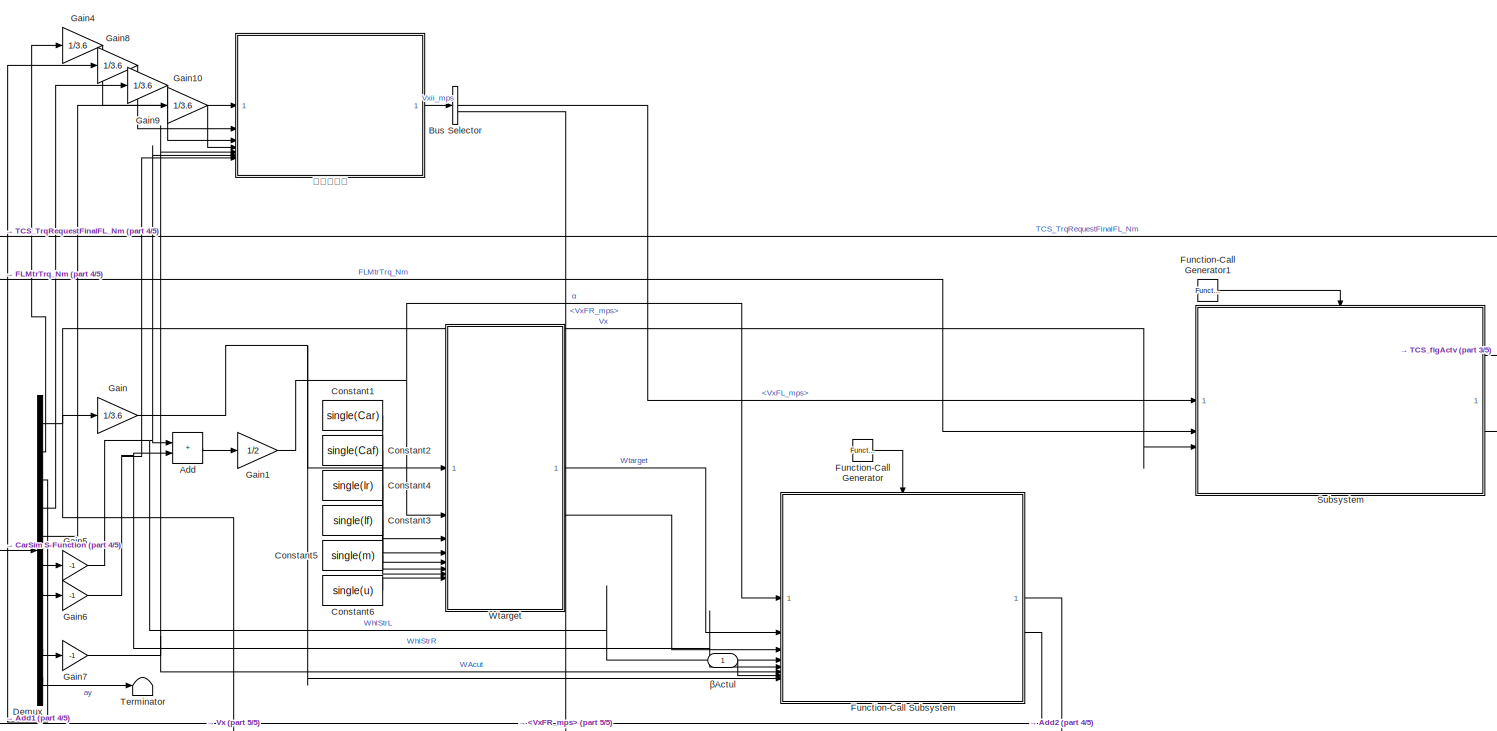
[diagram: root canvas - part 1/5, central region]
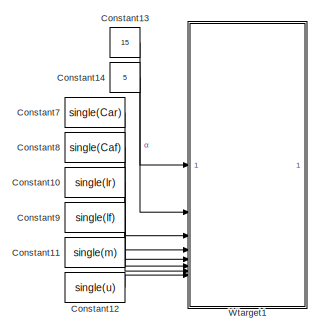
[diagram: root canvas - part 2/5, top right region]
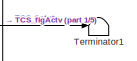
[diagram: root canvas - part 3/5, central region]
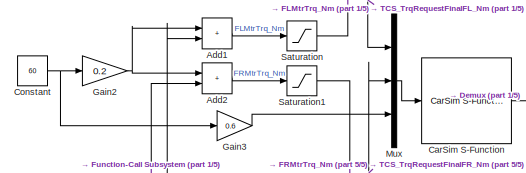
[diagram: root canvas - part 4/5, middle left region]
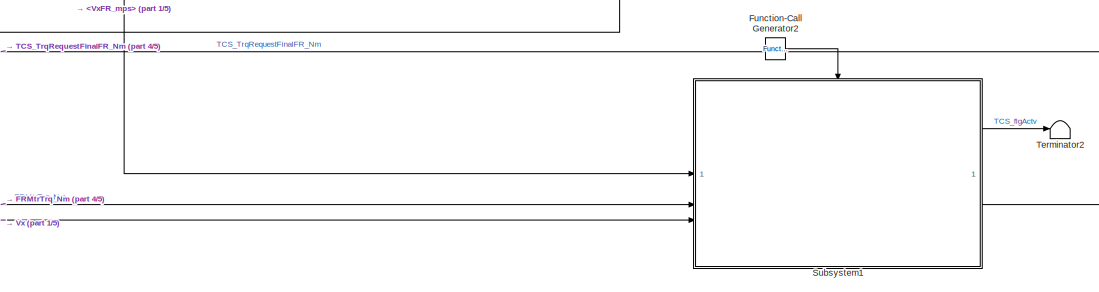
[diagram: root canvas - part 5/5, bottom center region]
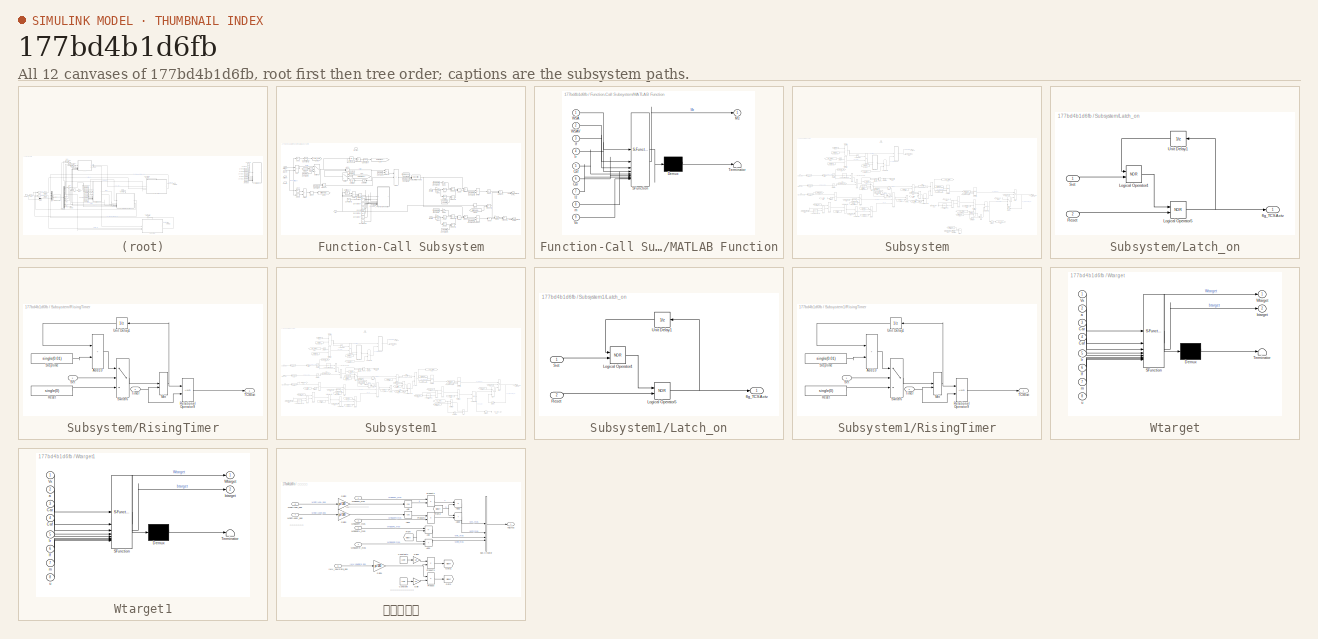
[diagram: thumbnail index - all 12 canvases of the model, root first then tree order]
MODEL slx_177bd4b1d6fb
KIND model
CONFIG AbsTol = auto
CONFIG EnableMultiTasking = off
CONFIG FixedStep = auto
CONFIG MaxStep = auto
CONFIG MinStep = auto
CONFIG RelTol = 1e-3
CONFIG SampleTimeConstraint = Unconstrained
CONFIG SolverName = VariableStepAuto
CONFIG StartTime = 0.0
CONFIG StopTime = 30
BLOCK [Sum] Add
  IconShape = rectangular
BLOCK [Sum] Add1
  IconShape = rectangular
BLOCK [Sum] Add2
  IconShape = rectangular
BLOCK [BusSelector] Bus Selector
  OutputSignals = VxFL_mps,VxFR_mps,VxRL_mps,VxRR_mps
BLOCK [Reference] CarSim S-Function  REF=Solver_SF/CarSim S-Function
  Priority = 1
  SourceBlock = Solver_SF/CarSim S-Function
  SourceProductName = CarSim S-Function
  SourceType = Vehicle math model library
BLOCK [Constant] Constant
  Value = 60
BLOCK [Constant] Constant1
  Value = single(Car)
BLOCK [Constant] Constant10
  Commented = on
  Value = single(lr)
BLOCK [Constant] Constant11
  Commented = on
  Value = single(m)
BLOCK [Constant] Constant12
  Commented = on
  Value = single(u)
BLOCK [Constant] Constant13
  Commented = on
  Value = 15
BLOCK [Constant] Constant14
  Commented = on
  Value = 5
BLOCK [Constant] Constant2
  Value = single(Caf)
BLOCK [Constant] Constant3
  Value = single(lf)
BLOCK [Constant] Constant4
  Value = single(lr)
BLOCK [Constant] Constant5
  Value = single(m)
BLOCK [Constant] Constant6
  Value = single(u)
BLOCK [Constant] Constant7
  Commented = on
  Value = single(Car)
BLOCK [Constant] Constant8
  Commented = on
  Value = single(Caf)
BLOCK [Constant] Constant9
  Commented = on
  Value = single(lf)
BLOCK [Demux] Demux
  Outputs = 10
BLOCK [Reference] Function-Call Generator  REF=simulink/Ports &
Subsystems/Function-Call
Generator
  SourceBlock = simulink/Ports &\nSubsystems/Function-Call\nGenerator
  SourceType = Function-Call Generator
BLOCK [Reference] Function-Call Generator1  REF=simulink/Ports &
Subsystems/Function-Call
Generator
  SourceBlock = simulink/Ports &\nSubsystems/Function-Call\nGenerator
  SourceType = Function-Call Generator
BLOCK [Reference] Function-Call Generator2  REF=simulink/Ports &
Subsystems/Function-Call
Generator
  SourceBlock = simulink/Ports &\nSubsystems/Function-Call\nGenerator
  SourceType = Function-Call Generator
BLOCK [SubSystem] Function-Call Subsystem
  TreatAsAtomicUnit = on
BLOCK [Abs] Function-Call Subsystem/Abs1
  SaturateOnIntegerOverflow = off
BLOCK [Abs] Function-Call Subsystem/Abs2
  SaturateOnIntegerOverflow = off
BLOCK [Abs] Function-Call Subsystem/Abs3
  SaturateOnIntegerOverflow = off
BLOCK [Abs] Function-Call Subsystem/Abs4
  SaturateOnIntegerOverflow = off
BLOCK [Abs] Function-Call Subsystem/Abs5
  SaturateOnIntegerOverflow = off
BLOCK [Trigonometry] Function-Call Subsystem/Acos1
BLOCK [Trigonometry] Function-Call Subsystem/Acos2
BLOCK [Sum] Function-Call Subsystem/Add
  IconShape = rectangular
  Inputs = +-
BLOCK [Sum] Function-Call Subsystem/Add1
  IconShape = rectangular
BLOCK [Sum] Function-Call Subsystem/Add2
  IconShape = rectangular
  Inputs = +++
BLOCK [Sum] Function-Call Subsystem/Add3
  IconShape = rectangular
BLOCK [Sum] Function-Call Subsystem/Add4
  IconShape = rectangular
BLOCK [Sum] Function-Call Subsystem/Add5
  IconShape = rectangular
  Inputs = -+
BLOCK [Sum] Function-Call Subsystem/Add6
  IconShape = rectangular
  Inputs = -+
BLOCK [Outport] Function-Call Subsystem/AdditionalYawMomentFL
  Port = 2
BLOCK [Outport] Function-Call Subsystem/AdditionalYawMomentFR
BLOCK [Reference] Function-Call Subsystem/Compare To Constant  REF=simulink/Logic and Bit
Operations/Compare
To Constant
  SourceBlock = simulink/Logic and Bit\nOperations/Compare\nTo Constant
  SourceType = Compare To Constant
BLOCK [Reference] Function-Call Subsystem/Compare To Constant2  REF=simulink/Logic and Bit
Operations/Compare
To Constant
  SourceBlock = simulink/Logic and Bit\nOperations/Compare\nTo Constant
  SourceType = Compare To Constant
BLOCK [Constant] Function-Call Subsystem/Constant
  Value = single(Kp)
BLOCK [Constant] Function-Call Subsystem/Constant1
  Value = single(Ki)
BLOCK [Constant] Function-Call Subsystem/Constant10
  Value = single(dwf)
BLOCK [Constant] Function-Call Subsystem/Constant11
  Value = single(lf)
BLOCK [Constant] Function-Call Subsystem/Constant12
  Value = single(lf)
BLOCK [Constant] Function-Call Subsystem/Constant13
  Value = single(Rt)
BLOCK [Constant] Function-Call Subsystem/Constant14
  Value = lr
BLOCK [Constant] Function-Call Subsystem/Constant15
  Value = Caf
BLOCK [Constant] Function-Call Subsystem/Constant16
  Value = Car
BLOCK [Constant] Function-Call Subsystem/Constant17
  Value = Iz
BLOCK [Constant] Function-Call Subsystem/Constant18
  Value = m
BLOCK [Constant] Function-Call Subsystem/Constant2
  Value = single(0)
BLOCK [Constant] Function-Call Subsystem/Constant3
  Value = 0.01
BLOCK [Constant] Function-Call Subsystem/Constant4
  Value = lf
BLOCK [Constant] Function-Call Subsystem/Constant5
  Value = single(10000)
BLOCK [Constant] Function-Call Subsystem/Constant6
  Value = single(-10000)
BLOCK [Constant] Function-Call Subsystem/Constant7
  Value = single(dwf)
BLOCK [Constant] Function-Call Subsystem/Constant8
  Value = single(Rt)
BLOCK [Constant] Function-Call Subsystem/Constant9
  Value = single(0)
BLOCK [Product] Function-Call Subsystem/Divide
  Inputs = **
BLOCK [Product] Function-Call Subsystem/Divide1
  Inputs = */
BLOCK [Product] Function-Call Subsystem/Divide2
  Inputs = **
BLOCK [Product] Function-Call Subsystem/Divide3
  Inputs = */
BLOCK [Product] Function-Call Subsystem/Divide4
  Inputs = */
BLOCK [From] Function-Call Subsystem/From
  GotoTag = ZeroCrossingDetection
BLOCK [From] Function-Call Subsystem/From2
  GotoTag = TVD_exit
BLOCK [From] Function-Call Subsystem/From3
  GotoTag = ErrorJudgment
BLOCK [Gain] Function-Call Subsystem/Gain1
  Gain = pi/180
BLOCK [Gain] Function-Call Subsystem/Gain2
  Gain = pi/180
BLOCK [Gain] Function-Call Subsystem/Gain3
  Gain = 1/2
BLOCK [Gain] Function-Call Subsystem/Gain4
  Gain = 1/2
BLOCK [Gain] Function-Call Subsystem/Gain5
  Gain = -1
BLOCK [Goto] Function-Call Subsystem/Goto
  GotoTag = ZeroCrossingDetection
BLOCK [Goto] Function-Call Subsystem/Goto2
  GotoTag = TVD_exit
BLOCK [Goto] Function-Call Subsystem/Goto3
  GotoTag = ErrorJudgment
BLOCK [SubSystem] Function-Call Subsystem/MATLAB Function
  ErrorFcn = Stateflow.Translate.translate
  LibrarySourceBlock = simulink/User-Defined\nFunctions/MATLAB Function
  PermitHierarchicalResolution = ExplicitOnly
  SFBlockType = MATLAB Function
  TreatAsAtomicUnit = on
BLOCK [Demux] Function-Call Subsystem/MATLAB Function/ Demux 
  Outputs = 1
BLOCK [S-Function] Function-Call Subsystem/MATLAB Function/ SFunction 
  EnableBusSupport = on
  FunctionName = sf_sfun
  PortCounts = [9 2]
  SFcnIsStateOwnerBlock = off
  SFunctionDeploymentMode = off
  Tag = Stateflow S-Function 3
BLOCK [Terminator] Function-Call Subsystem/MATLAB Function/ Terminator 
BLOCK [Inport] Function-Call Subsystem/MATLAB Function/Caf
  Port = 5
BLOCK [Inport] Function-Call Subsystem/MATLAB Function/Car
  Port = 6
BLOCK [Inport] Function-Call Subsystem/MATLAB Function/Iz
  Port = 7
BLOCK [Outport] Function-Call Subsystem/MATLAB Function/Mz
BLOCK [Inport] Function-Call Subsystem/MATLAB Function/Vx
  Port = 9
BLOCK [Inport] Function-Call Subsystem/MATLAB Function/WSA
BLOCK [Inport] Function-Call Subsystem/MATLAB Function/WSAV
  Port = 2
BLOCK [Inport] Function-Call Subsystem/MATLAB Function/lf
  Port = 3
BLOCK [Inport] Function-Call Subsystem/MATLAB Function/lr
  Port = 4
BLOCK [Inport] Function-Call Subsystem/MATLAB Function/m
  Port = 8
BLOCK [Logic] Function-Call Subsystem/NOT
  AllPortsSameDT = off
  Operator = NOT
  OutDataTypeStr = boolean
BLOCK [Product] Function-Call Subsystem/Product
BLOCK [Product] Function-Call Subsystem/Product1
BLOCK [Product] Function-Call Subsystem/Product10
BLOCK [Product] Function-Call Subsystem/Product3
BLOCK [Product] Function-Call Subsystem/Product4
BLOCK [Product] Function-Call Subsystem/Product5
BLOCK [Product] Function-Call Subsystem/Product6
BLOCK [Product] Function-Call Subsystem/Product7
BLOCK [Product] Function-Call Subsystem/Product8
BLOCK [Product] Function-Call Subsystem/Product9
BLOCK [Reference] Function-Call Subsystem/Rate Limiter Dynamic  REF=simulink/Discontinuities/Rate Limiter
Dynamic
  SourceBlock = simulink/Discontinuities/Rate Limiter\nDynamic
  SourceType = Rate Limiter Dynamic
BLOCK [Saturate] Function-Call Subsystem/Saturation
  LowerLimit = -10
  UpperLimit = 10
BLOCK [Signum] Function-Call Subsystem/Sign1
BLOCK [Signum] Function-Call Subsystem/Sign2
BLOCK [Switch] Function-Call Subsystem/Switch
  Criteria = u2 ~= 0
  InputSameDT = off
  SaturateOnIntegerOverflow = off
BLOCK [Switch] Function-Call Subsystem/Switch2
  Criteria = u2 ~= 0
  InputSameDT = off
  SaturateOnIntegerOverflow = off
BLOCK [UnitDelay] Function-Call Subsystem/Unit Delay
  HasFrameUpgradeWarning = on
  SampleTime = -1
BLOCK [UnitDelay] Function-Call Subsystem/Unit Delay1
  HasFrameUpgradeWarning = on
  SampleTime = -1
BLOCK [UnitDelay] Function-Call Subsystem/Unit Delay2
  HasFrameUpgradeWarning = on
  SampleTime = -1
BLOCK [Inport] Function-Call Subsystem/VehSpd_mps
  Port = 8
BLOCK [Inport] Function-Call Subsystem/WAcut
  Port = 6
BLOCK [Inport] Function-Call Subsystem/WhlStrL
  Port = 4
BLOCK [Inport] Function-Call Subsystem/WhlStrR
  Port = 5
BLOCK [Inport] Function-Call Subsystem/Wtarget
  Port = 2
BLOCK [Trigonometry] Function-Call Subsystem/cos
  Operator = cos
BLOCK [Trigonometry] Function-Call Subsystem/cos1
  Operator = cos
BLOCK [TriggerPort] Function-Call Subsystem/function
  StatesWhenEnabling = held
  TriggerType = function-call
  VariantControl = (inherit)
BLOCK [Inport] Function-Call Subsystem/α
BLOCK [Inport] Function-Call Subsystem/βActul
  Port = 7
BLOCK [Inport] Function-Call Subsystem/βtarget
  Port = 3
BLOCK [Gain] Gain
  Gain = 1/3.6
BLOCK [Gain] Gain1
  Gain = 1/2
BLOCK [Gain] Gain10
  Gain = 1/3.6
BLOCK [Gain] Gain2
  Gain = 0.2
BLOCK [Gain] Gain3
  Gain = 0.6
BLOCK [Gain] Gain4
  Gain = 1/3.6
BLOCK [Gain] Gain5
  Gain = -1
BLOCK [Gain] Gain6
  Gain = -1
BLOCK [Gain] Gain7
  Gain = -1
BLOCK [Gain] Gain8
  Gain = 1/3.6
BLOCK [Gain] Gain9
  Gain = 1/3.6
BLOCK [Mux] Mux
  DisplayOption = bar
  Inputs = 3
BLOCK [Saturate] Saturation
  LowerLimit = 0
  UpperLimit = inf
BLOCK [Saturate] Saturation1
  LowerLimit = 0
  UpperLimit = inf
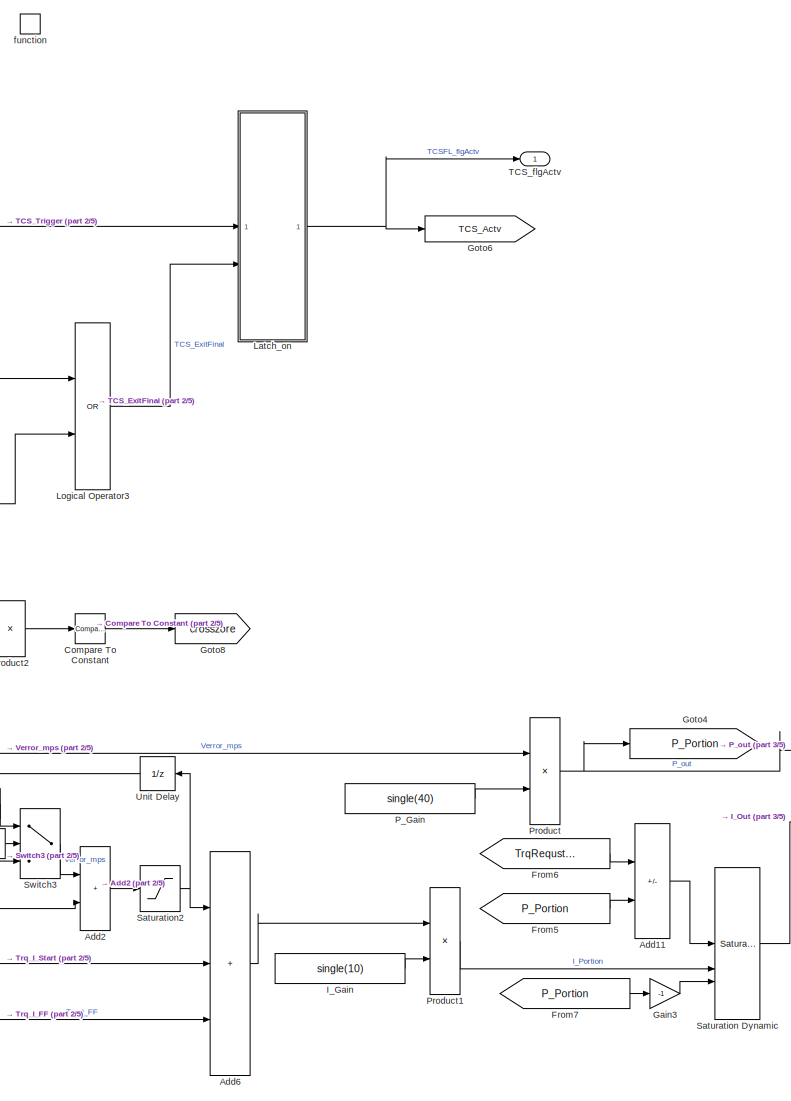
[diagram: Subsystem - part 1/5, central region]
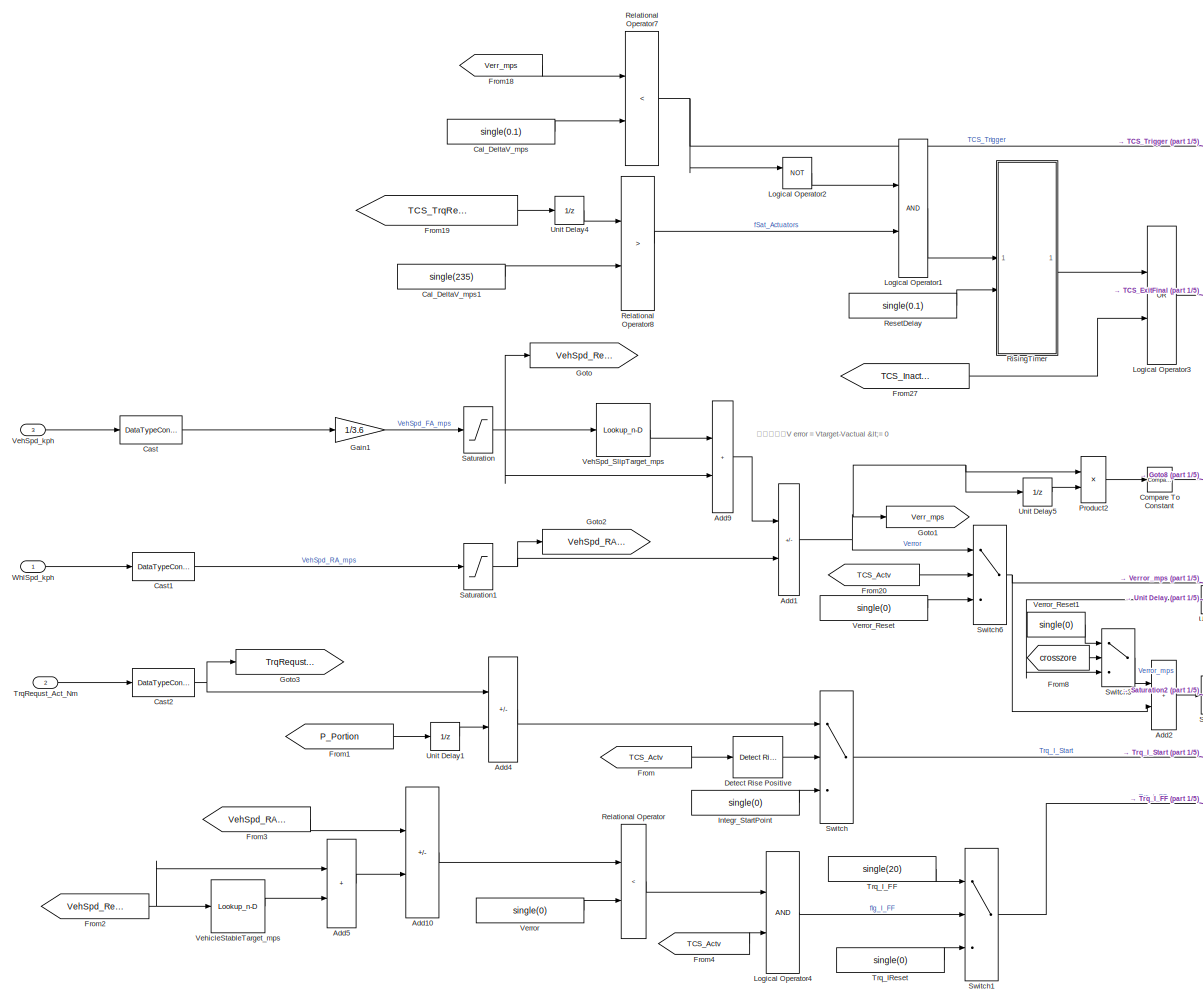
[diagram: Subsystem - part 2/5, left side, full height]
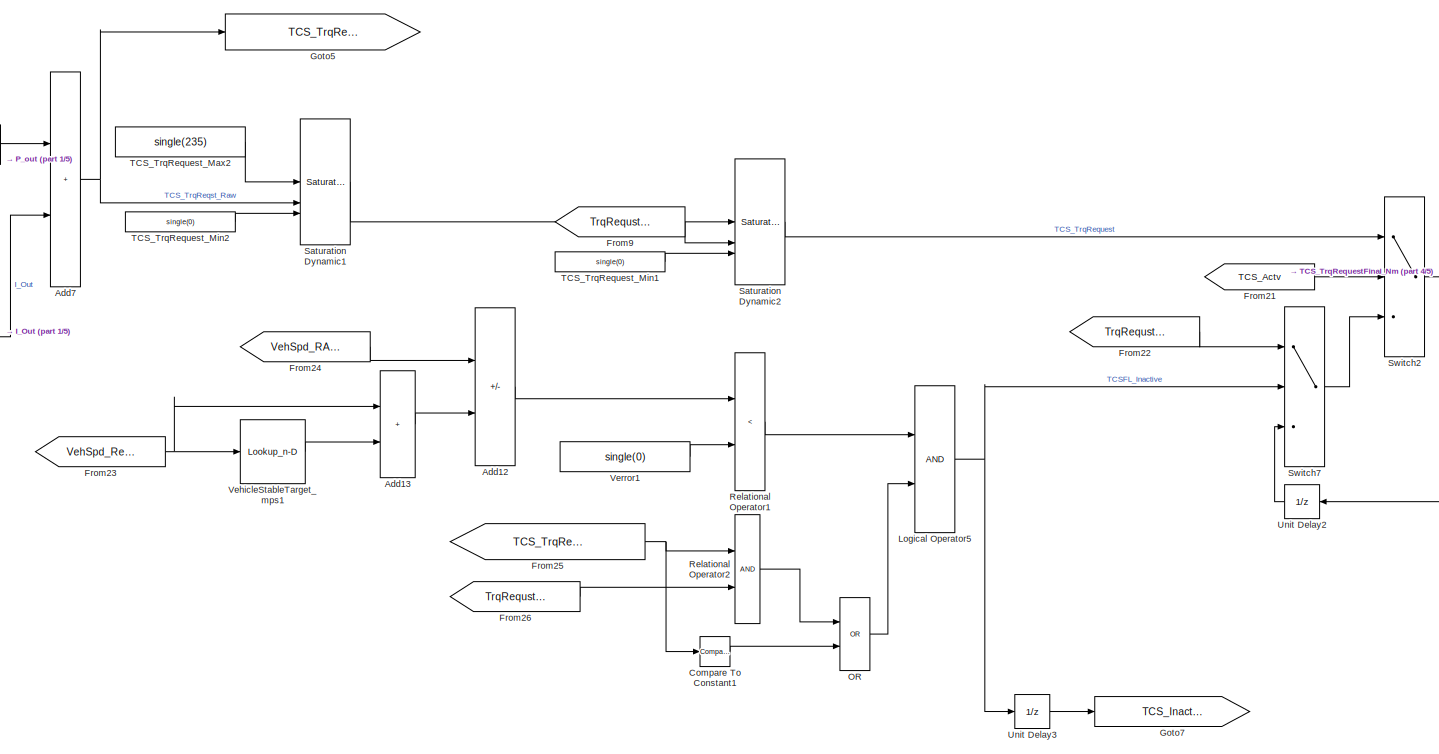
[diagram: Subsystem - part 3/5, middle right region]
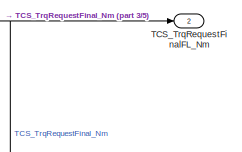
[diagram: Subsystem - part 4/5, middle right region]
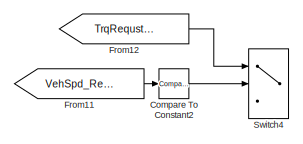
[diagram: Subsystem - part 5/5, bottom center region]
BLOCK [SubSystem] Subsystem
BLOCK [Sum] Subsystem/Add1
  IconShape = rectangular
  Inputs = +-
BLOCK [Sum] Subsystem/Add10
  IconShape = rectangular
  Inputs = +-
BLOCK [Sum] Subsystem/Add11
  IconShape = rectangular
  Inputs = +-
BLOCK [Sum] Subsystem/Add12
  IconShape = rectangular
  Inputs = +-
BLOCK [Sum] Subsystem/Add13
  IconShape = rectangular
BLOCK [Sum] Subsystem/Add2
  IconShape = rectangular
BLOCK [Sum] Subsystem/Add4
  IconShape = rectangular
  Inputs = +-
BLOCK [Sum] Subsystem/Add5
  IconShape = rectangular
BLOCK [Sum] Subsystem/Add6
  IconShape = rectangular
  Inputs = +++
BLOCK [Sum] Subsystem/Add7
  IconShape = rectangular
BLOCK [Sum] Subsystem/Add9
  IconShape = rectangular
BLOCK [Constant] Subsystem/Cal_DeltaV_mps
  Value = single(0.1)
BLOCK [Constant] Subsystem/Cal_DeltaV_mps1
  Value = single(235)
BLOCK [DataTypeConversion] Subsystem/Cast
  OutDataTypeStr = single
  RndMeth = Floor
  SaturateOnIntegerOverflow = off
BLOCK [DataTypeConversion] Subsystem/Cast1
  OutDataTypeStr = single
  RndMeth = Floor
  SaturateOnIntegerOverflow = off
BLOCK [DataTypeConversion] Subsystem/Cast2
  OutDataTypeStr = single
  RndMeth = Floor
  SaturateOnIntegerOverflow = off
BLOCK [Reference] Subsystem/Compare To Constant  REF=simulink/Logic and Bit
Operations/Compare
To Constant
  SourceBlock = simulink/Logic and Bit\nOperations/Compare\nTo Constant
  SourceType = Compare To Constant
BLOCK [Reference] Subsystem/Compare To Constant1  REF=simulink/Logic and Bit
Operations/Compare
To Constant
  SourceBlock = simulink/Logic and Bit\nOperations/Compare\nTo Constant
  SourceType = Compare To Constant
BLOCK [Reference] Subsystem/Compare To Constant2  REF=simulink/Logic and Bit
Operations/Compare
To Constant
  Commented = on
  SourceBlock = simulink/Logic and Bit\nOperations/Compare\nTo Constant
  SourceType = Compare To Constant
BLOCK [Reference] Subsystem/Detect Rise Positive  REF=simulink/Logic and Bit
Operations/Detect Rise
Positive
  SourceBlock = simulink/Logic and Bit\nOperations/Detect Rise\nPositive
  SourceType = Detect Rise Positive
BLOCK [From] Subsystem/From
  GotoTag = TCS_Actv
BLOCK [From] Subsystem/From1
  GotoTag = P_Portion
BLOCK [From] Subsystem/From11
  Commented = on
  GotoTag = VehSpd_Ref_mps
BLOCK [From] Subsystem/From12
  Commented = on
  GotoTag = TrqRequst_Act_Nm
BLOCK [From] Subsystem/From18
  GotoTag = Verr_mps
BLOCK [From] Subsystem/From19
  GotoTag = TCS_TrqReqstRaw_Nm
BLOCK [From] Subsystem/From2
  GotoTag = VehSpd_Ref_mps
BLOCK [From] Subsystem/From20
  GotoTag = TCS_Actv
BLOCK [From] Subsystem/From21
  GotoTag = TCS_Actv
BLOCK [From] Subsystem/From22
  GotoTag = TrqRequst_Act_Nm
BLOCK [From] Subsystem/From23
  GotoTag = VehSpd_Ref_mps
BLOCK [From] Subsystem/From24
  GotoTag = VehSpd_RA_mps
BLOCK [From] Subsystem/From25
  GotoTag = TCS_TrqReqstRaw_Nm
BLOCK [From] Subsystem/From26
  GotoTag = TrqRequst_Act_Nm
BLOCK [From] Subsystem/From27
  GotoTag = TCS_Inactive
BLOCK [From] Subsystem/From3
  GotoTag = VehSpd_RA_mps
BLOCK [From] Subsystem/From4
  GotoTag = TCS_Actv
BLOCK [From] Subsystem/From5
  GotoTag = P_Portion
BLOCK [From] Subsystem/From6
  GotoTag = TrqRequst_Act_Nm
BLOCK [From] Subsystem/From7
  GotoTag = P_Portion
BLOCK [From] Subsystem/From8
  GotoTag = crosszore
BLOCK [From] Subsystem/From9
  GotoTag = TrqRequst_Act_Nm
BLOCK [Gain] Subsystem/Gain1
  Gain = 1/3.6
BLOCK [Gain] Subsystem/Gain3
  Gain = -1
BLOCK [Goto] Subsystem/Goto
  GotoTag = VehSpd_Ref_mps
BLOCK [Goto] Subsystem/Goto1
  GotoTag = Verr_mps
BLOCK [Goto] Subsystem/Goto2
  GotoTag = VehSpd_RA_mps
BLOCK [Goto] Subsystem/Goto3
  GotoTag = TrqRequst_Act_Nm
BLOCK [Goto] Subsystem/Goto4
  GotoTag = P_Portion
BLOCK [Goto] Subsystem/Goto5
  GotoTag = TCS_TrqReqstRaw_Nm
BLOCK [Goto] Subsystem/Goto6
  GotoTag = TCS_Actv
BLOCK [Goto] Subsystem/Goto7
  GotoTag = TCS_Inactive
BLOCK [Goto] Subsystem/Goto8
  GotoTag = crosszore
BLOCK [Constant] Subsystem/I_Gain
  Value = single(10)
BLOCK [Constant] Subsystem/Integr_StartPoint
  Value = single(0)
BLOCK [SubSystem] Subsystem/Latch_on
BLOCK [Logic] Subsystem/Latch_on/Logical Operator4
  AllPortsSameDT = off
  Operator = NOR
  OutDataTypeStr = boolean
BLOCK [Logic] Subsystem/Latch_on/Logical Operator5
  AllPortsSameDT = off
  Operator = NOR
  OutDataTypeStr = boolean
BLOCK [Inport] Subsystem/Latch_on/Reset
  Port = 2
BLOCK [Inport] Subsystem/Latch_on/Set
BLOCK [UnitDelay] Subsystem/Latch_on/Unit Delay1
  HasFrameUpgradeWarning = on
  SampleTime = -1
BLOCK [Outport] Subsystem/Latch_on/flg_TCSActv
BLOCK [Logic] Subsystem/Logical Operator1
  AllPortsSameDT = off
  OutDataTypeStr = boolean
BLOCK [Logic] Subsystem/Logical Operator2
  AllPortsSameDT = off
  Operator = NOT
  OutDataTypeStr = boolean
BLOCK [Logic] Subsystem/Logical Operator3
  AllPortsSameDT = off
  Operator = OR
  OutDataTypeStr = boolean
BLOCK [Logic] Subsystem/Logical Operator4
  AllPortsSameDT = off
  OutDataTypeStr = boolean
BLOCK [Logic] Subsystem/Logical Operator5
  AllPortsSameDT = off
  OutDataTypeStr = boolean
BLOCK [Logic] Subsystem/OR
  AllPortsSameDT = off
  Operator = OR
  OutDataTypeStr = boolean
BLOCK [Constant] Subsystem/P_Gain
  Value = single(40)
BLOCK [Product] Subsystem/Product
BLOCK [Product] Subsystem/Product1
BLOCK [Product] Subsystem/Product2
BLOCK [RelationalOperator] Subsystem/Relational Operator
  InputSameDT = off
  Operator = <
  OutDataTypeStr = boolean
  RndMeth = Simplest
BLOCK [RelationalOperator] Subsystem/Relational Operator1
  InputSameDT = off
  Operator = <
  OutDataTypeStr = boolean
  RndMeth = Simplest
BLOCK [RelationalOperator] Subsystem/Relational Operator2
  InputSameDT = off
  OutDataTypeStr = boolean
  RndMeth = Simplest
BLOCK [RelationalOperator] Subsystem/Relational Operator7
  InputSameDT = off
  Operator = <
  OutDataTypeStr = boolean
  RndMeth = Simplest
BLOCK [RelationalOperator] Subsystem/Relational Operator8
  InputSameDT = off
  Operator = >
  OutDataTypeStr = boolean
  RndMeth = Simplest
BLOCK [Constant] Subsystem/ResetDelay
  Value = single(0.1)
BLOCK [SubSystem] Subsystem/RisingTimer
BLOCK [Sum] Subsystem/RisingTimer/Add10
  IconShape = rectangular
BLOCK [MinMax] Subsystem/RisingTimer/Min
  Inputs = 2
BLOCK [RelationalOperator] Subsystem/RisingTimer/Relational Operator9
  InputSameDT = off
  OutDataTypeStr = boolean
  RndMeth = Simplest
BLOCK [Constant] Subsystem/RisingTimer/Reset
  Value = single(0)
BLOCK [Inport] Subsystem/RisingTimer/Set
BLOCK [Constant] Subsystem/RisingTimer/Steptime
  Value = single(0.01)
BLOCK [Switch] Subsystem/RisingTimer/Switch6
  Criteria = u2 ~= 0
  InputSameDT = off
  SaturateOnIntegerOverflow = off
BLOCK [Outport] Subsystem/RisingTimer/TCSExit
BLOCK [Inport] Subsystem/RisingTimer/Timer
  Port = 2
BLOCK [UnitDelay] Subsystem/RisingTimer/Unit Delay1
  HasFrameUpgradeWarning = on
  SampleTime = -1
BLOCK [Saturate] Subsystem/Saturation
  LowerLimit = 0
  UpperLimit = 40
BLOCK [Reference] Subsystem/Saturation Dynamic  REF=simulink/Discontinuities/Saturation
Dynamic
  SourceBlock = simulink/Discontinuities/Saturation\nDynamic
  SourceType = Saturation Dynamic
BLOCK [Reference] Subsystem/Saturation Dynamic1  REF=simulink/Discontinuities/Saturation
Dynamic
  SourceBlock = simulink/Discontinuities/Saturation\nDynamic
  SourceType = Saturation Dynamic
BLOCK [Reference] Subsystem/Saturation Dynamic2  REF=simulink/Discontinuities/Saturation
Dynamic
  SourceBlock = simulink/Discontinuities/Saturation\nDynamic
  SourceType = Saturation Dynamic
BLOCK [Saturate] Subsystem/Saturation1
  LowerLimit = 0
  UpperLimit = 50
BLOCK [Saturate] Subsystem/Saturation2
  LowerLimit = -100
  UpperLimit = 400
BLOCK [Switch] Subsystem/Switch
  Criteria = u2 ~= 0
  InputSameDT = off
  SaturateOnIntegerOverflow = off
BLOCK [Switch] Subsystem/Switch1
  Criteria = u2 ~= 0
  InputSameDT = off
  SaturateOnIntegerOverflow = off
BLOCK [Switch] Subsystem/Switch2
  Criteria = u2 ~= 0
  InputSameDT = off
  SaturateOnIntegerOverflow = off
BLOCK [Switch] Subsystem/Switch3
  Criteria = u2 ~= 0
  InputSameDT = off
  SaturateOnIntegerOverflow = off
BLOCK [Switch] Subsystem/Switch4
  Commented = on
  Criteria = u2 ~= 0
  InputSameDT = off
  SaturateOnIntegerOverflow = off
BLOCK [Switch] Subsystem/Switch6
  Criteria = u2 ~= 0
  InputSameDT = off
  SaturateOnIntegerOverflow = off
BLOCK [Switch] Subsystem/Switch7
  Criteria = u2 ~= 0
  InputSameDT = off
  SaturateOnIntegerOverflow = off
BLOCK [Outport] Subsystem/TCS_TrqRequestFinalFL_Nm
  Port = 2
BLOCK [Constant] Subsystem/TCS_TrqRequest_Max2
  Value = single(235)
BLOCK [Constant] Subsystem/TCS_TrqRequest_Min1
  Value = single(0)
BLOCK [Constant] Subsystem/TCS_TrqRequest_Min2
  Value = single(0)
BLOCK [Outport] Subsystem/TCS_flgActv
BLOCK [Inport] Subsystem/TrqRequst_Act_Nm
  Port = 2
BLOCK [Constant] Subsystem/Trq_IReset
  Value = single(0)
BLOCK [Constant] Subsystem/Trq_I_FF
  Value = single(20)
BLOCK [UnitDelay] Subsystem/Unit Delay
  HasFrameUpgradeWarning = on
  SampleTime = -1
BLOCK [UnitDelay] Subsystem/Unit Delay1
  HasFrameUpgradeWarning = on
  SampleTime = -1
BLOCK [UnitDelay] Subsystem/Unit Delay2
  HasFrameUpgradeWarning = on
  SampleTime = -1
BLOCK [UnitDelay] Subsystem/Unit Delay3
  HasFrameUpgradeWarning = on
  SampleTime = -1
BLOCK [UnitDelay] Subsystem/Unit Delay4
  HasFrameUpgradeWarning = on
  SampleTime = -1
BLOCK [UnitDelay] Subsystem/Unit Delay5
  HasFrameUpgradeWarning = on
  SampleTime = -1
BLOCK [Lookup_n-D] Subsystem/VehSpd_SlipTarget_mps
  BreakpointsForDimension1 = [0 3 25 30]
  ExtrapMethod = Clip
  InputPortMap = u0
  InternalRulePriority = Speed
  NumberOfTableDimensions = 1
  RndMeth = Simplest
  Table = [0.2 0.2 2.5 2.5]
BLOCK [Inport] Subsystem/VehSpd_kph
  Port = 3
BLOCK [Lookup_n-D] Subsystem/VehicleStableTarget_mps
  BreakpointsForDimension1 = [0,3,25,30]
  ExtrapMethod = Clip
  InputPortMap = u0
  InternalRulePriority = Speed
  NumberOfTableDimensions = 1
  RndMeth = Simplest
  Table = [0.4,0.4,1.2,1.2]
BLOCK [Lookup_n-D] Subsystem/VehicleStableTarget_mps1
  BreakpointsForDimension1 = [0,3,25,30]
  ExtrapMethod = Clip
  InputPortMap = u0
  InternalRulePriority = Speed
  NumberOfTableDimensions = 1
  RndMeth = Simplest
  Table = [0.4,0.4,1.2,1.2]
BLOCK [Constant] Subsystem/Verror
  Value = single(0)
BLOCK [Constant] Subsystem/Verror1
  Value = single(0)
BLOCK [Constant] Subsystem/Verror_Reset
  Value = single(0)
BLOCK [Constant] Subsystem/Verror_Reset1
  Value = single(0)
BLOCK [Inport] Subsystem/WhlSpd_kph
BLOCK [TriggerPort] Subsystem/function
  StatesWhenEnabling = held
  TriggerType = function-call
  VariantControl = (inherit)
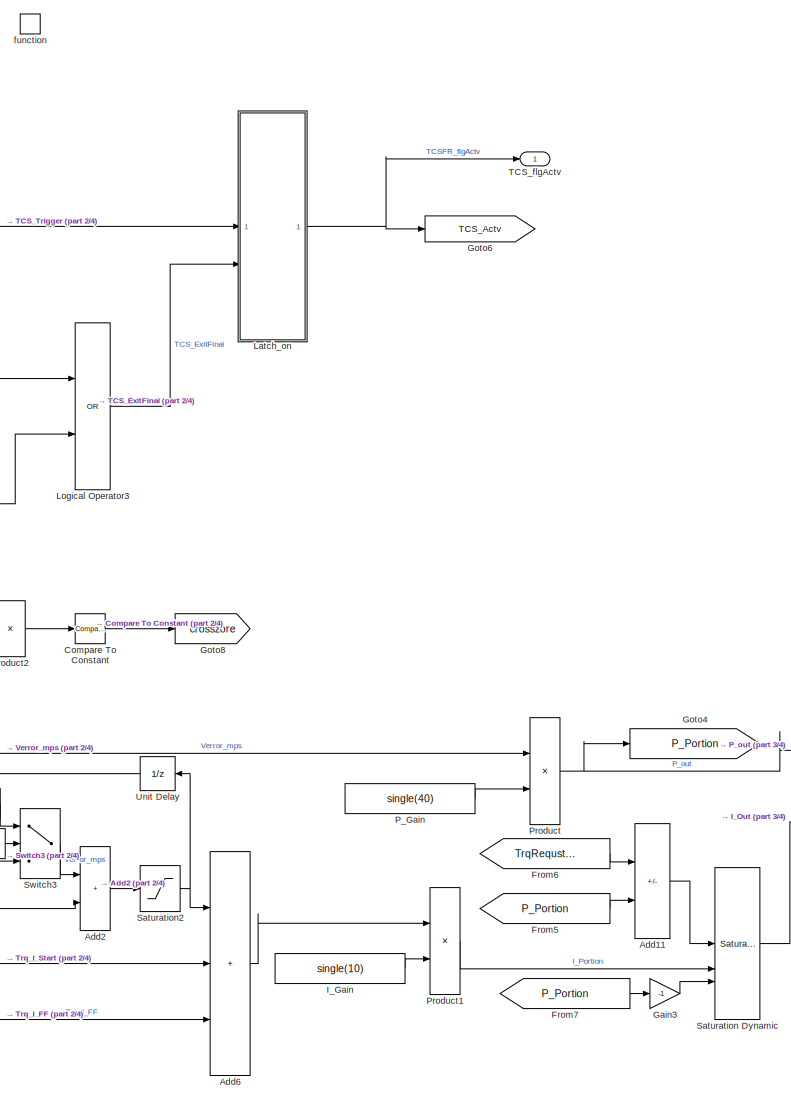
[diagram: Subsystem1 - part 1/4, center side, full height]
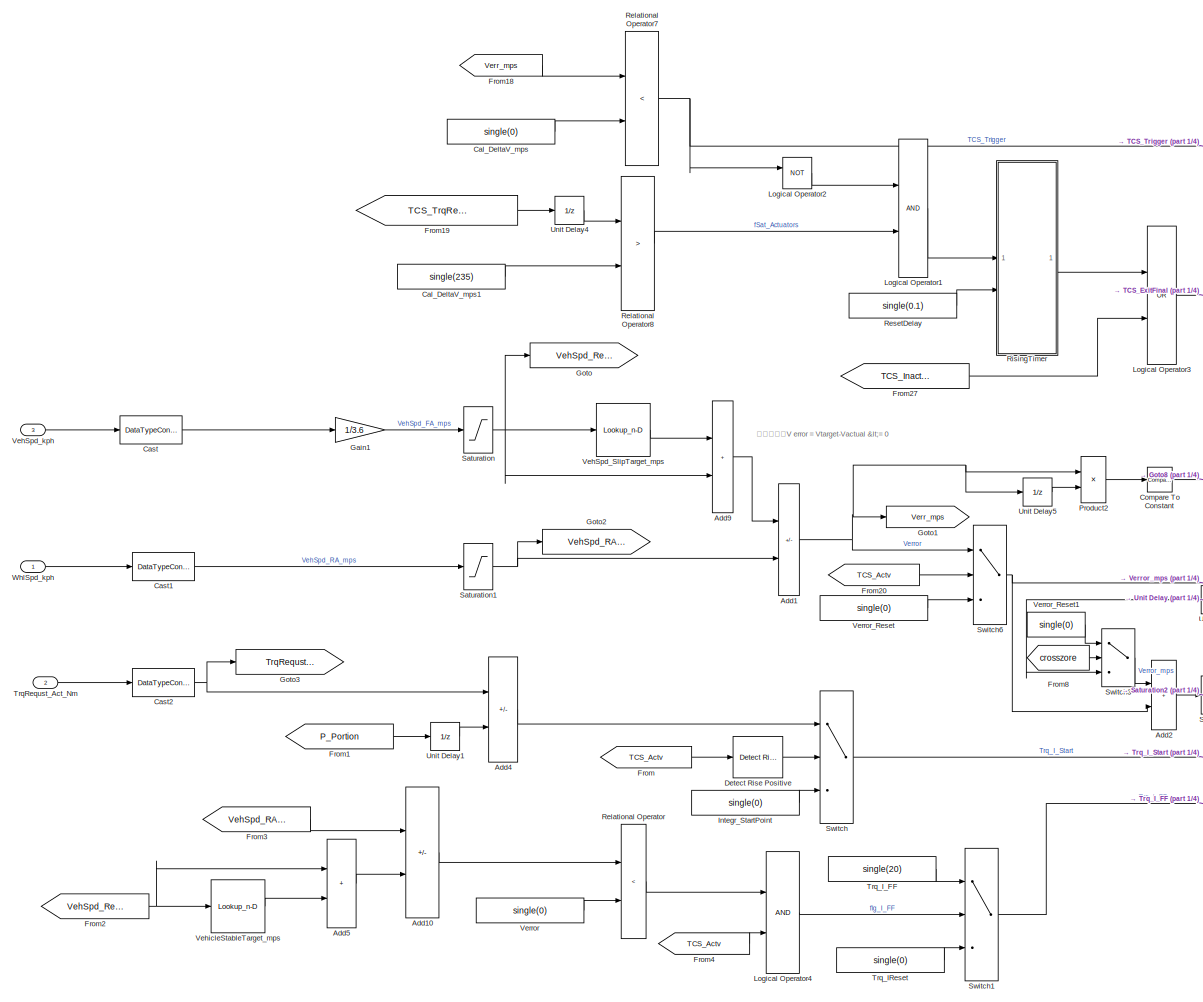
[diagram: Subsystem1 - part 2/4, left side, full height]
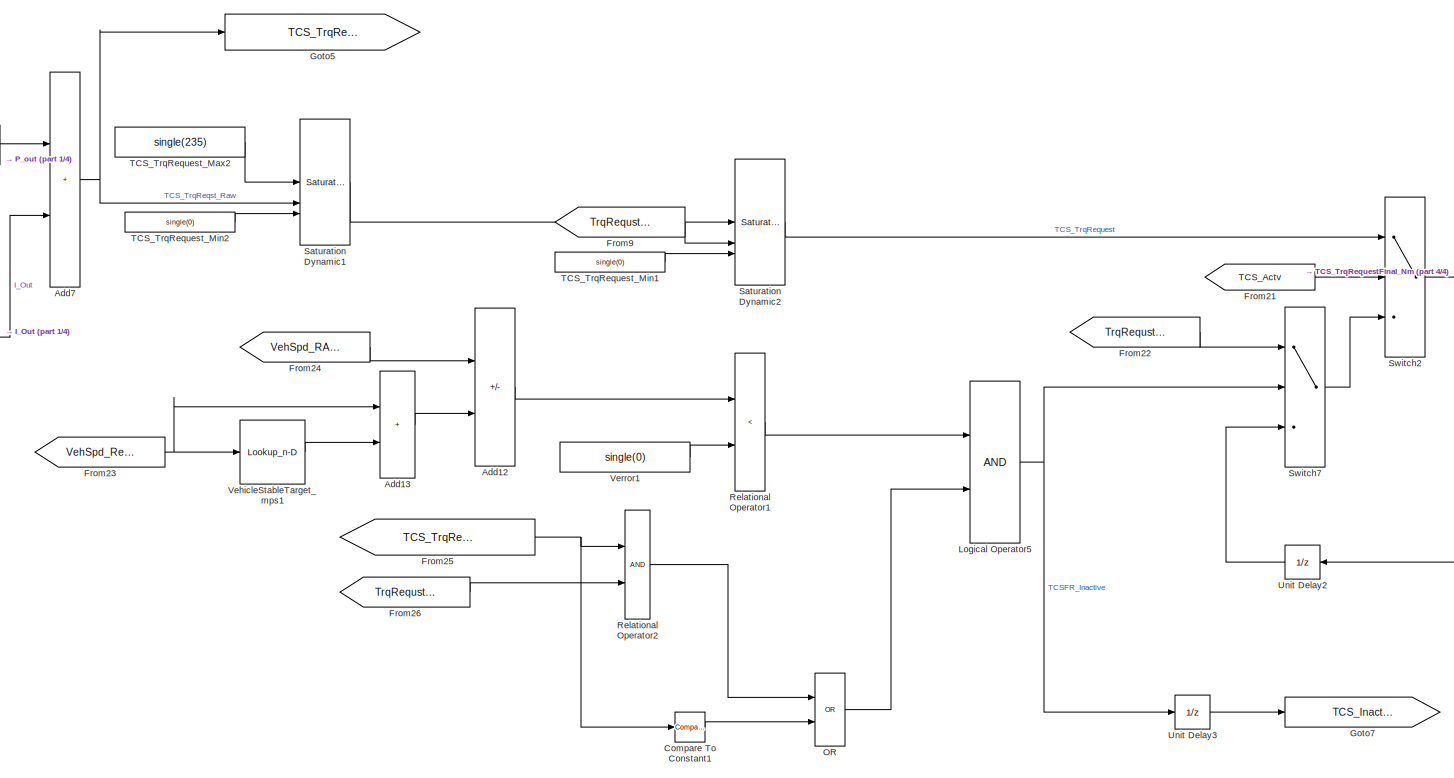
[diagram: Subsystem1 - part 3/4, bottom right region]
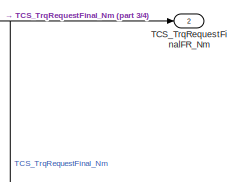
[diagram: Subsystem1 - part 4/4, bottom right region]
BLOCK [SubSystem] Subsystem1
BLOCK [Sum] Subsystem1/Add1
  IconShape = rectangular
  Inputs = +-
BLOCK [Sum] Subsystem1/Add10
  IconShape = rectangular
  Inputs = +-
BLOCK [Sum] Subsystem1/Add11
  IconShape = rectangular
  Inputs = +-
BLOCK [Sum] Subsystem1/Add12
  IconShape = rectangular
  Inputs = +-
BLOCK [Sum] Subsystem1/Add13
  IconShape = rectangular
BLOCK [Sum] Subsystem1/Add2
  IconShape = rectangular
BLOCK [Sum] Subsystem1/Add4
  IconShape = rectangular
  Inputs = +-
BLOCK [Sum] Subsystem1/Add5
  IconShape = rectangular
BLOCK [Sum] Subsystem1/Add6
  IconShape = rectangular
  Inputs = +++
BLOCK [Sum] Subsystem1/Add7
  IconShape = rectangular
BLOCK [Sum] Subsystem1/Add9
  IconShape = rectangular
BLOCK [Constant] Subsystem1/Cal_DeltaV_mps
  Value = single(0)
BLOCK [Constant] Subsystem1/Cal_DeltaV_mps1
  Value = single(235)
BLOCK [DataTypeConversion] Subsystem1/Cast
  OutDataTypeStr = single
  RndMeth = Floor
  SaturateOnIntegerOverflow = off
BLOCK [DataTypeConversion] Subsystem1/Cast1
  OutDataTypeStr = single
  RndMeth = Floor
  SaturateOnIntegerOverflow = off
BLOCK [DataTypeConversion] Subsystem1/Cast2
  OutDataTypeStr = single
  RndMeth = Floor
  SaturateOnIntegerOverflow = off
BLOCK [Reference] Subsystem1/Compare To Constant  REF=simulink/Logic and Bit
Operations/Compare
To Constant
  SourceBlock = simulink/Logic and Bit\nOperations/Compare\nTo Constant
  SourceType = Compare To Constant
BLOCK [Reference] Subsystem1/Compare To Constant1  REF=simulink/Logic and Bit
Operations/Compare
To Constant
  SourceBlock = simulink/Logic and Bit\nOperations/Compare\nTo Constant
  SourceType = Compare To Constant
BLOCK [Reference] Subsystem1/Detect Rise Positive  REF=simulink/Logic and Bit
Operations/Detect Rise
Positive
  SourceBlock = simulink/Logic and Bit\nOperations/Detect Rise\nPositive
  SourceType = Detect Rise Positive
BLOCK [From] Subsystem1/From
  GotoTag = TCS_Actv
BLOCK [From] Subsystem1/From1
  GotoTag = P_Portion
BLOCK [From] Subsystem1/From18
  GotoTag = Verr_mps
BLOCK [From] Subsystem1/From19
  GotoTag = TCS_TrqReqstRaw_Nm
BLOCK [From] Subsystem1/From2
  GotoTag = VehSpd_Ref_mps
BLOCK [From] Subsystem1/From20
  GotoTag = TCS_Actv
BLOCK [From] Subsystem1/From21
  GotoTag = TCS_Actv
BLOCK [From] Subsystem1/From22
  GotoTag = TrqRequst_Act_Nm
BLOCK [From] Subsystem1/From23
  GotoTag = VehSpd_Ref_mps
BLOCK [From] Subsystem1/From24
  GotoTag = VehSpd_RA_mps
BLOCK [From] Subsystem1/From25
  GotoTag = TCS_TrqReqstRaw_Nm
BLOCK [From] Subsystem1/From26
  GotoTag = TrqRequst_Act_Nm
BLOCK [From] Subsystem1/From27
  GotoTag = TCS_Inactive
BLOCK [From] Subsystem1/From3
  GotoTag = VehSpd_RA_mps
BLOCK [From] Subsystem1/From4
  GotoTag = TCS_Actv
BLOCK [From] Subsystem1/From5
  GotoTag = P_Portion
BLOCK [From] Subsystem1/From6
  GotoTag = TrqRequst_Act_Nm
BLOCK [From] Subsystem1/From7
  GotoTag = P_Portion
BLOCK [From] Subsystem1/From8
  GotoTag = crosszore
BLOCK [From] Subsystem1/From9
  GotoTag = TrqRequst_Act_Nm
BLOCK [Gain] Subsystem1/Gain1
  Gain = 1/3.6
BLOCK [Gain] Subsystem1/Gain3
  Gain = -1
BLOCK [Goto] Subsystem1/Goto
  GotoTag = VehSpd_Ref_mps
BLOCK [Goto] Subsystem1/Goto1
  GotoTag = Verr_mps
BLOCK [Goto] Subsystem1/Goto2
  GotoTag = VehSpd_RA_mps
BLOCK [Goto] Subsystem1/Goto3
  GotoTag = TrqRequst_Act_Nm
BLOCK [Goto] Subsystem1/Goto4
  GotoTag = P_Portion
BLOCK [Goto] Subsystem1/Goto5
  GotoTag = TCS_TrqReqstRaw_Nm
BLOCK [Goto] Subsystem1/Goto6
  GotoTag = TCS_Actv
BLOCK [Goto] Subsystem1/Goto7
  GotoTag = TCS_Inactive
BLOCK [Goto] Subsystem1/Goto8
  GotoTag = crosszore
BLOCK [Constant] Subsystem1/I_Gain
  Value = single(10)
BLOCK [Constant] Subsystem1/Integr_StartPoint
  Value = single(0)
BLOCK [SubSystem] Subsystem1/Latch_on
BLOCK [Logic] Subsystem1/Latch_on/Logical Operator4
  AllPortsSameDT = off
  Operator = NOR
  OutDataTypeStr = boolean
BLOCK [Logic] Subsystem1/Latch_on/Logical Operator5
  AllPortsSameDT = off
  Operator = NOR
  OutDataTypeStr = boolean
BLOCK [Inport] Subsystem1/Latch_on/Reset
  Port = 2
BLOCK [Inport] Subsystem1/Latch_on/Set
BLOCK [UnitDelay] Subsystem1/Latch_on/Unit Delay1
  HasFrameUpgradeWarning = on
  SampleTime = -1
BLOCK [Outport] Subsystem1/Latch_on/flg_TCSActv
BLOCK [Logic] Subsystem1/Logical Operator1
  AllPortsSameDT = off
  OutDataTypeStr = boolean
BLOCK [Logic] Subsystem1/Logical Operator2
  AllPortsSameDT = off
  Operator = NOT
  OutDataTypeStr = boolean
BLOCK [Logic] Subsystem1/Logical Operator3
  AllPortsSameDT = off
  Operator = OR
  OutDataTypeStr = boolean
BLOCK [Logic] Subsystem1/Logical Operator4
  AllPortsSameDT = off
  OutDataTypeStr = boolean
BLOCK [Logic] Subsystem1/Logical Operator5
  AllPortsSameDT = off
  OutDataTypeStr = boolean
BLOCK [Logic] Subsystem1/OR
  AllPortsSameDT = off
  Operator = OR
  OutDataTypeStr = boolean
BLOCK [Constant] Subsystem1/P_Gain
  Value = single(40)
BLOCK [Product] Subsystem1/Product
BLOCK [Product] Subsystem1/Product1
BLOCK [Product] Subsystem1/Product2
BLOCK [RelationalOperator] Subsystem1/Relational Operator
  InputSameDT = off
  Operator = <
  OutDataTypeStr = boolean
  RndMeth = Simplest
BLOCK [RelationalOperator] Subsystem1/Relational Operator1
  InputSameDT = off
  Operator = <
  OutDataTypeStr = boolean
  RndMeth = Simplest
BLOCK [RelationalOperator] Subsystem1/Relational Operator2
  InputSameDT = off
  OutDataTypeStr = boolean
  RndMeth = Simplest
BLOCK [RelationalOperator] Subsystem1/Relational Operator7
  InputSameDT = off
  Operator = <
  OutDataTypeStr = boolean
  RndMeth = Simplest
BLOCK [RelationalOperator] Subsystem1/Relational Operator8
  InputSameDT = off
  Operator = >
  OutDataTypeStr = boolean
  RndMeth = Simplest
BLOCK [Constant] Subsystem1/ResetDelay
  Value = single(0.1)
BLOCK [SubSystem] Subsystem1/RisingTimer
BLOCK [Sum] Subsystem1/RisingTimer/Add10
  IconShape = rectangular
BLOCK [MinMax] Subsystem1/RisingTimer/Min
  Inputs = 2
BLOCK [RelationalOperator] Subsystem1/RisingTimer/Relational Operator9
  InputSameDT = off
  OutDataTypeStr = boolean
  RndMeth = Simplest
BLOCK [Constant] Subsystem1/RisingTimer/Reset
  Value = single(0)
BLOCK [Inport] Subsystem1/RisingTimer/Set
BLOCK [Constant] Subsystem1/RisingTimer/Steptime
  Value = single(0.01)
BLOCK [Switch] Subsystem1/RisingTimer/Switch6
  Criteria = u2 ~= 0
  InputSameDT = off
  SaturateOnIntegerOverflow = off
BLOCK [Outport] Subsystem1/RisingTimer/TCSExit
BLOCK [Inport] Subsystem1/RisingTimer/Timer
  Port = 2
BLOCK [UnitDelay] Subsystem1/RisingTimer/Unit Delay1
  HasFrameUpgradeWarning = on
  SampleTime = -1
BLOCK [Saturate] Subsystem1/Saturation
  LowerLimit = 0
  UpperLimit = 40
BLOCK [Reference] Subsystem1/Saturation Dynamic  REF=simulink/Discontinuities/Saturation
Dynamic
  SourceBlock = simulink/Discontinuities/Saturation\nDynamic
  SourceType = Saturation Dynamic
BLOCK [Reference] Subsystem1/Saturation Dynamic1  REF=simulink/Discontinuities/Saturation
Dynamic
  SourceBlock = simulink/Discontinuities/Saturation\nDynamic
  SourceType = Saturation Dynamic
BLOCK [Reference] Subsystem1/Saturation Dynamic2  REF=simulink/Discontinuities/Saturation
Dynamic
  SourceBlock = simulink/Discontinuities/Saturation\nDynamic
  SourceType = Saturation Dynamic
BLOCK [Saturate] Subsystem1/Saturation1
  LowerLimit = 0
  UpperLimit = 50
BLOCK [Saturate] Subsystem1/Saturation2
  LowerLimit = -100
  UpperLimit = 400
BLOCK [Switch] Subsystem1/Switch
  Criteria = u2 ~= 0
  InputSameDT = off
  SaturateOnIntegerOverflow = off
BLOCK [Switch] Subsystem1/Switch1
  Criteria = u2 ~= 0
  InputSameDT = off
  SaturateOnIntegerOverflow = off
BLOCK [Switch] Subsystem1/Switch2
  Criteria = u2 ~= 0
  InputSameDT = off
  SaturateOnIntegerOverflow = off
BLOCK [Switch] Subsystem1/Switch3
  Criteria = u2 ~= 0
  InputSameDT = off
  SaturateOnIntegerOverflow = off
BLOCK [Switch] Subsystem1/Switch6
  Criteria = u2 ~= 0
  InputSameDT = off
  SaturateOnIntegerOverflow = off
BLOCK [Switch] Subsystem1/Switch7
  Criteria = u2 ~= 0
  InputSameDT = off
  SaturateOnIntegerOverflow = off
BLOCK [Outport] Subsystem1/TCS_TrqRequestFinalFR_Nm
  Port = 2
BLOCK [Constant] Subsystem1/TCS_TrqRequest_Max2
  Value = single(235)
BLOCK [Constant] Subsystem1/TCS_TrqRequest_Min1
  Value = single(0)
BLOCK [Constant] Subsystem1/TCS_TrqRequest_Min2
  Value = single(0)
BLOCK [Outport] Subsystem1/TCS_flgActv
BLOCK [Inport] Subsystem1/TrqRequst_Act_Nm
  Port = 2
BLOCK [Constant] Subsystem1/Trq_IReset
  Value = single(0)
BLOCK [Constant] Subsystem1/Trq_I_FF
  Value = single(20)
BLOCK [UnitDelay] Subsystem1/Unit Delay
  HasFrameUpgradeWarning = on
  SampleTime = -1
BLOCK [UnitDelay] Subsystem1/Unit Delay1
  HasFrameUpgradeWarning = on
  SampleTime = -1
BLOCK [UnitDelay] Subsystem1/Unit Delay2
  HasFrameUpgradeWarning = on
  SampleTime = -1
BLOCK [UnitDelay] Subsystem1/Unit Delay3
  HasFrameUpgradeWarning = on
  SampleTime = -1
BLOCK [UnitDelay] Subsystem1/Unit Delay4
  HasFrameUpgradeWarning = on
  SampleTime = -1
BLOCK [UnitDelay] Subsystem1/Unit Delay5
  HasFrameUpgradeWarning = on
  SampleTime = -1
BLOCK [Lookup_n-D] Subsystem1/VehSpd_SlipTarget_mps
  BreakpointsForDimension1 = [0 3 25 30]
  ExtrapMethod = Clip
  InputPortMap = u0
  InternalRulePriority = Speed
  NumberOfTableDimensions = 1
  RndMeth = Simplest
  Table = [0.2 0.2 2.5 2.5]
BLOCK [Inport] Subsystem1/VehSpd_kph
  Port = 3
BLOCK [Lookup_n-D] Subsystem1/VehicleStableTarget_mps
  BreakpointsForDimension1 = [0,3,25,30]
  ExtrapMethod = Clip
  InputPortMap = u0
  InternalRulePriority = Speed
  NumberOfTableDimensions = 1
  RndMeth = Simplest
  Table = [0.4,0.4,1.2,1.2]
BLOCK [Lookup_n-D] Subsystem1/VehicleStableTarget_mps1
  BreakpointsForDimension1 = [0,3,25,30]
  ExtrapMethod = Clip
  InputPortMap = u0
  InternalRulePriority = Speed
  NumberOfTableDimensions = 1
  RndMeth = Simplest
  Table = [0.4,0.4,1.2,1.2]
BLOCK [Constant] Subsystem1/Verror
  Value = single(0)
BLOCK [Constant] Subsystem1/Verror1
  Value = single(0)
BLOCK [Constant] Subsystem1/Verror_Reset
  Value = single(0)
BLOCK [Constant] Subsystem1/Verror_Reset1
  Value = single(0)
BLOCK [Inport] Subsystem1/WhlSpd_kph
BLOCK [TriggerPort] Subsystem1/function
  StatesWhenEnabling = held
  TriggerType = function-call
  VariantControl = (inherit)
BLOCK [Terminator] Terminator
BLOCK [Terminator] Terminator1
BLOCK [Terminator] Terminator2
BLOCK [SubSystem] Wtarget
  ErrorFcn = Stateflow.Translate.translate
  LibrarySourceBlock = simulink/User-Defined\nFunctions/MATLAB Function
  PermitHierarchicalResolution = ExplicitOnly
  SFBlockType = MATLAB Function
  TreatAsAtomicUnit = on
BLOCK [Demux] Wtarget/ Demux 
  Outputs = 1
BLOCK [S-Function] Wtarget/ SFunction 
  EnableBusSupport = on
  FunctionName = sf_sfun
  PortCounts = [8 3]
  SFcnIsStateOwnerBlock = off
  SFunctionDeploymentMode = off
  Tag = Stateflow S-Function 2
BLOCK [Terminator] Wtarget/ Terminator 
BLOCK [Inport] Wtarget/Caf
  Port = 4
BLOCK [Inport] Wtarget/Car
  Port = 3
BLOCK [Inport] Wtarget/Vx
BLOCK [Outport] Wtarget/Wtarget
BLOCK [Inport] Wtarget/a
  Port = 2
BLOCK [Outport] Wtarget/btarget
  Port = 2
BLOCK [Inport] Wtarget/lf
  Port = 6
BLOCK [Inport] Wtarget/lr
  Port = 5
BLOCK [Inport] Wtarget/m
  Port = 7
BLOCK [Inport] Wtarget/u
  Port = 8
BLOCK [SubSystem] Wtarget1
  Commented = on
  ErrorFcn = Stateflow.Translate.translate
  LibrarySourceBlock = simulink/User-Defined\nFunctions/MATLAB Function
  PermitHierarchicalResolution = ExplicitOnly
  SFBlockType = MATLAB Function
  TreatAsAtomicUnit = on
BLOCK [Demux] Wtarget1/ Demux 
  Outputs = 1
BLOCK [S-Function] Wtarget1/ SFunction 
  EnableBusSupport = on
  FunctionName = sf_sfun
  PortCounts = [8 3]
  SFcnIsStateOwnerBlock = off
  SFunctionDeploymentMode = off
  Tag = Stateflow S-Function 1
BLOCK [Terminator] Wtarget1/ Terminator 
BLOCK [Inport] Wtarget1/Caf
  Port = 4
BLOCK [Inport] Wtarget1/Car
  Port = 3
BLOCK [Inport] Wtarget1/Vx
BLOCK [Outport] Wtarget1/Wtarget
BLOCK [Inport] Wtarget1/a
  Port = 2
BLOCK [Outport] Wtarget1/btarget
  Port = 2
BLOCK [Inport] Wtarget1/lf
  Port = 6
BLOCK [Inport] Wtarget1/lr
  Port = 5
BLOCK [Inport] Wtarget1/m
  Port = 7
BLOCK [Inport] Wtarget1/u
  Port = 8
BLOCK [Inport] βActul
BLOCK [SubSystem] 坐标系转换
BLOCK [Sum] 坐标系转换/Add
  IconShape = rectangular
  Inputs = +-
BLOCK [Sum] 坐标系转换/Add1
  IconShape = rectangular
BLOCK [Sum] 坐标系转换/Add2
  IconShape = rectangular
  Inputs = +-
BLOCK [Sum] 坐标系转换/Add3
  IconShape = rectangular
BLOCK [Trigonometry] 坐标系转换/Asin
  Operator = cos
BLOCK [Trigonometry] 坐标系转换/Asin1
  Operator = cos
BLOCK [BusCreator] 坐标系转换/Bus Creator
  DisplayOption = bar
  InheritFromInputs = on
  Inputs = 4
BLOCK [Constant] 坐标系转换/Constant
  Value = Ldwr
BLOCK [Constant] 坐标系转换/Constant1
  Value = Ldwf
BLOCK [From] 坐标系转换/From
  GotoTag = Vldwr
BLOCK [From] 坐标系转换/From2
  GotoTag = Vldwf
BLOCK [Gain] 坐标系转换/Gain
  Gain = 1/2
BLOCK [Gain] 坐标系转换/Gain1
  Gain = 1/2
BLOCK [Gain] 坐标系转换/Gain2
  Gain = pi/180
BLOCK [Gain] 坐标系转换/Gain3
  Gain = pi/180
BLOCK [Gain] 坐标系转换/Gain4
  Gain = pi/180
BLOCK [Goto] 坐标系转换/Goto
  GotoTag = Vldwr
BLOCK [Goto] 坐标系转换/Goto1
  GotoTag = Vldwf
BLOCK [Inport] 坐标系转换/IMU_YawRate_dps
  Port = 5
BLOCK [Product] 坐标系转换/Product
BLOCK [Product] 坐标系转换/Product1
BLOCK [Product] 坐标系转换/Product2
BLOCK [Product] 坐标系转换/Product3
BLOCK [Outport] 坐标系转换/Vxii_mps
BLOCK [Inport] 坐标系转换/WhlSpdFL_mps
BLOCK [Inport] 坐标系转换/WhlSpdFR_mps
  Port = 2
BLOCK [Inport] 坐标系转换/WhlSpdRL_mps
  Port = 3
BLOCK [Inport] 坐标系转换/WhlSpdRR_mps
  Port = 4
BLOCK [Inport] 坐标系转换/WhlStrAngL_deg
  Port = 6
BLOCK [Inport] 坐标系转换/WhlStrAngR_deg
  Port = 7
ANNOTATION Subsystem: 特殊设置：V error = Vtarget-Vactual <= 0
ANNOTATION Subsystem1: 特殊设置：V error = Vtarget-Vactual <= 0
ANNOTATION 坐标系转换: cos模块的单位是弧度制、
ANNOTATION 坐标系转换: 未考虑漂移工况
ANNOTATION 坐标系转换: 顺时针为正，逆时针为负。
LINE Add1:1 -> Saturation:1
LINE Add2:1 -> Saturation1:1
LINE Add:1 -> Gain1:1
LINE Bus Selector:1 -> Subsystem:1
LINE Bus Selector:2 -> Subsystem1:1
LINE CarSim S-Function:1 -> Demux:1
LINE Constant10:1 -> Wtarget1:5
LINE Constant11:1 -> Wtarget1:7
LINE Constant12:1 -> Wtarget1:8
LINE Constant13:1 -> Wtarget1:1
LINE Constant14:1 -> Wtarget1:2
LINE Constant1:1 -> Wtarget:3
LINE Constant2:1 -> Wtarget:4
LINE Constant3:1 -> Wtarget:6
LINE Constant4:1 -> Wtarget:5
LINE Constant5:1 -> Wtarget:7
LINE Constant6:1 -> Wtarget:8
LINE Constant7:1 -> Wtarget1:3
LINE Constant8:1 -> Wtarget1:4
LINE Constant9:1 -> Wtarget1:6
NET Constant:1 -> Gain2:1, Gain3:1
NET Demux:1 -> Gain:1, Subsystem1:3, Subsystem:3
LINE Demux:10 -> Terminator:1
LINE Demux:2 -> Gain4:1
LINE Demux:3 -> Gain8:1
LINE Demux:4 -> Gain9:1
LINE Demux:5 -> Gain10:1
LINE Demux:6 -> Gain5:1
LINE Demux:7 -> Gain6:1
LINE Demux:9 -> Gain7:1
LINE Function-Call Generator1:1 -> Subsystem:trigger
LINE Function-Call Generator2:1 -> Subsystem1:trigger
LINE Function-Call Generator:1 -> Function-Call Subsystem:trigger
LINE Function-Call Subsystem/Abs1:1 -> Function-Call Subsystem/Compare To Constant2:1
LINE Function-Call Subsystem/Abs2:1 -> Function-Call Subsystem/Product7:1
LINE Function-Call Subsystem/Abs3:1 -> Function-Call Subsystem/Product8:2
LINE Function-Call Subsystem/Abs4:1 -> Function-Call Subsystem/Add5:1
LINE Function-Call Subsystem/Abs5:1 -> Function-Call Subsystem/Add5:2
LINE Function-Call Subsystem/Acos1:1 -> Function-Call Subsystem/Product4:1
LINE Function-Call Subsystem/Acos2:1 -> Function-Call Subsystem/Product6:1
NET Function-Call Subsystem/Add1:1 -> Function-Call Subsystem/Product1:1, Function-Call Subsystem/Saturation:1
LINE Function-Call Subsystem/Add2:1 -> Function-Call Subsystem/Rate Limiter Dynamic:2
LINE Function-Call Subsystem/Add3:1 -> Function-Call Subsystem/Divide1:2
LINE Function-Call Subsystem/Add4:1 -> Function-Call Subsystem/Divide3:2
LINE Function-Call Subsystem/Add5:1 -> Function-Call Subsystem/Sign2:1
LINE Function-Call Subsystem/Add6:1 -> Function-Call Subsystem/Divide4:1
LINE Function-Call Subsystem/Add:1 -> Function-Call Subsystem/Switch2:1
LINE Function-Call Subsystem/Compare To Constant2:1 -> Function-Call Subsystem/Goto2:1
LINE Function-Call Subsystem/Compare To Constant:1 -> Function-Call Subsystem/Goto:1
LINE Function-Call Subsystem/Constant10:1 -> Function-Call Subsystem/Gain3:1
LINE Function-Call Subsystem/Constant11:1 -> Function-Call Subsystem/Product4:2
LINE Function-Call Subsystem/Constant12:1 -> Function-Call Subsystem/Product6:2
LINE Function-Call Subsystem/Constant13:1 -> Function-Call Subsystem/Divide2:2
LINE Function-Call Subsystem/Constant14:1 -> Function-Call Subsystem/MATLAB Function:4
LINE Function-Call Subsystem/Constant15:1 -> Function-Call Subsystem/MATLAB Function:5
LINE Function-Call Subsystem/Constant16:1 -> Function-Call Subsystem/MATLAB Function:6
LINE Function-Call Subsystem/Constant17:1 -> Function-Call Subsystem/MATLAB Function:7
LINE Function-Call Subsystem/Constant18:1 -> Function-Call Subsystem/MATLAB Function:8
LINE Function-Call Subsystem/Constant1:1 -> Function-Call Subsystem/Product1:2
LINE Function-Call Subsystem/Constant2:1 -> Function-Call Subsystem/Switch:1
LINE Function-Call Subsystem/Constant3:1 -> Function-Call Subsystem/Divide4:2
LINE Function-Call Subsystem/Constant4:1 -> Function-Call Subsystem/MATLAB Function:3
LINE Function-Call Subsystem/Constant5:1 -> Function-Call Subsystem/Rate Limiter Dynamic:1
LINE Function-Call Subsystem/Constant6:1 -> Function-Call Subsystem/Rate Limiter Dynamic:3
LINE Function-Call Subsystem/Constant7:1 -> Function-Call Subsystem/Gain4:1
LINE Function-Call Subsystem/Constant8:1 -> Function-Call Subsystem/Divide:2
LINE Function-Call Subsystem/Constant9:1 -> Function-Call Subsystem/Switch2:3
LINE Function-Call Subsystem/Constant:1 -> Function-Call Subsystem/Product:2
LINE Function-Call Subsystem/Divide1:1 -> Function-Call Subsystem/Divide:1
LINE Function-Call Subsystem/Divide2:1 -> Function-Call Subsystem/Abs3:1
LINE Function-Call Subsystem/Divide3:1 -> Function-Call Subsystem/Divide2:1
LINE Function-Call Subsystem/Divide4:1 -> Function-Call Subsystem/MATLAB Function:2
LINE Function-Call Subsystem/Divide:1 -> Function-Call Subsystem/Abs2:1
LINE Function-Call Subsystem/From2:1 -> Function-Call Subsystem/NOT:1
LINE Function-Call Subsystem/From3:1 -> Function-Call Subsystem/Product9:2
LINE Function-Call Subsystem/From:1 -> Function-Call Subsystem/Switch:2
NET Function-Call Subsystem/Gain1:1 -> Function-Call Subsystem/Acos2:1, Function-Call Subsystem/cos1:1
NET Function-Call Subsystem/Gain2:1 -> Function-Call Subsystem/Acos1:1, Function-Call Subsystem/cos:1
LINE Function-Call Subsystem/Gain3:1 -> Function-Call Subsystem/Product3:1
LINE Function-Call Subsystem/Gain4:1 -> Function-Call Subsystem/Product5:1
LINE Function-Call Subsystem/Gain5:1 -> Function-Call Subsystem/Product8:1
LINE Function-Call Subsystem/NOT:1 -> Function-Call Subsystem/Switch2:2
LINE Function-Call Subsystem/Product10:1 -> Function-Call Subsystem/Compare To Constant:1
LINE Function-Call Subsystem/Product1:1 -> Function-Call Subsystem/Add2:1
LINE Function-Call Subsystem/Product3:1 -> Function-Call Subsystem/Add3:1
LINE Function-Call Subsystem/Product4:1 -> Function-Call Subsystem/Add3:2
LINE Function-Call Subsystem/Product5:1 -> Function-Call Subsystem/Add4:1
LINE Function-Call Subsystem/Product6:1 -> Function-Call Subsystem/Add4:2
LINE Function-Call Subsystem/Product7:1 -> Function-Call Subsystem/AdditionalYawMomentFL:1
LINE Function-Call Subsystem/Product8:1 -> Function-Call Subsystem/AdditionalYawMomentFR:1
NET Function-Call Subsystem/Product9:1 -> Function-Call Subsystem/Gain5:1, Function-Call Subsystem/Product7:2
LINE Function-Call Subsystem/Product:1 -> Function-Call Subsystem/Add2:2
NET Function-Call Subsystem/Rate Limiter Dynamic:1 -> Function-Call Subsystem/Divide1:1, Function-Call Subsystem/Divide3:1
LINE Function-Call Subsystem/Saturation:1 -> Function-Call Subsystem/Unit Delay:1
LINE Function-Call Subsystem/Sign1:1 -> Function-Call Subsystem/Product9:1
LINE Function-Call Subsystem/Sign2:1 -> Function-Call Subsystem/Goto3:1
NET Function-Call Subsystem/Switch2:1 -> Function-Call Subsystem/Add1:1, Function-Call Subsystem/Product10:2, Function-Call Subsystem/Product:1, Function-Call Subsystem/Unit Delay1:1
LINE Function-Call Subsystem/Switch:1 -> Function-Call Subsystem/Add1:2
LINE Function-Call Subsystem/Unit Delay1:1 -> Function-Call Subsystem/Product10:1
LINE Function-Call Subsystem/Unit Delay2:1 -> Function-Call Subsystem/Add6:1
LINE Function-Call Subsystem/Unit Delay:1 -> Function-Call Subsystem/Switch:3
LINE Function-Call Subsystem/VehSpd_mps:1 -> Function-Call Subsystem/MATLAB Function:9
NET Function-Call Subsystem/WAcut:1 -> Function-Call Subsystem/Abs4:1, Function-Call Subsystem/Add:2
LINE Function-Call Subsystem/WhlStrL:1 -> Function-Call Subsystem/Gain1:1
LINE Function-Call Subsystem/WhlStrR:1 -> Function-Call Subsystem/Gain2:1
NET Function-Call Subsystem/Wtarget:1 -> Function-Call Subsystem/Abs1:1, Function-Call Subsystem/Abs5:1, Function-Call Subsystem/Add:1
LINE Function-Call Subsystem/cos1:1 -> Function-Call Subsystem/Product5:2
LINE Function-Call Subsystem/cos:1 -> Function-Call Subsystem/Product3:2
NET Function-Call Subsystem/α:1 -> Function-Call Subsystem/Add6:2, Function-Call Subsystem/MATLAB Function:1, Function-Call Subsystem/Sign1:1, Function-Call Subsystem/Unit Delay2:1
LINE Function-Call Subsystem:1 -> Add2:2
LINE Function-Call Subsystem:2 -> Add1:2
LINE Gain10:1 -> 坐标系转换:4
NET Gain1:1 -> Function-Call Subsystem:1, Wtarget:2
NET Gain2:1 -> Add1:1, Add2:1
LINE Gain3:1 -> Mux:3
LINE Gain4:1 -> 坐标系转换:1
NET Gain5:1 -> Add:1, Function-Call Subsystem:4, 坐标系转换:6
NET Gain6:1 -> Add:2, Function-Call Subsystem:5, 坐标系转换:7
NET Gain7:1 -> Function-Call Subsystem:6, 坐标系转换:5
LINE Gain8:1 -> 坐标系转换:2
LINE Gain9:1 -> 坐标系转换:3
NET Gain:1 -> Function-Call Subsystem:8, Wtarget:1
LINE Mux:1 -> CarSim S-Function:1
LINE Saturation1:1 -> Subsystem1:2
LINE Saturation:1 -> Subsystem:2
LINE Subsystem/Add10:1 -> Subsystem/Relational Operator:1
LINE Subsystem/Add11:1 -> Subsystem/Saturation Dynamic:1
LINE Subsystem/Add12:1 -> Subsystem/Relational Operator1:1
LINE Subsystem/Add13:1 -> Subsystem/Add12:2
NET Subsystem/Add1:1 -> Subsystem/Goto1:1, Subsystem/Product2:1, Subsystem/Switch6:1, Subsystem/Unit Delay5:1
LINE Subsystem/Add2:1 -> Subsystem/Saturation2:1
LINE Subsystem/Add4:1 -> Subsystem/Switch:1
LINE Subsystem/Add5:1 -> Subsystem/Add10:2
LINE Subsystem/Add6:1 -> Subsystem/Product1:1
NET Subsystem/Add7:1 -> Subsystem/Goto5:1, Subsystem/Saturation Dynamic1:2
LINE Subsystem/Add9:1 -> Subsystem/Add1:1
LINE Subsystem/Cal_DeltaV_mps1:1 -> Subsystem/Relational Operator8:2
LINE Subsystem/Cal_DeltaV_mps:1 -> Subsystem/Relational Operator7:2
LINE Subsystem/Cast1:1 -> Subsystem/Saturation1:1
NET Subsystem/Cast2:1 -> Subsystem/Add4:1, Subsystem/Goto3:1
LINE Subsystem/Cast:1 -> Subsystem/Gain1:1
LINE Subsystem/Compare To Constant1:1 -> Subsystem/OR:2
LINE Subsystem/Compare To Constant2:1 -> Subsystem/Switch4:2
LINE Subsystem/Compare To Constant:1 -> Subsystem/Goto8:1
LINE Subsystem/Detect Rise Positive:1 -> Subsystem/Switch:2
LINE Subsystem/From11:1 -> Subsystem/Compare To Constant2:1
LINE Subsystem/From12:1 -> Subsystem/Switch4:1
LINE Subsystem/From18:1 -> Subsystem/Relational Operator7:1
LINE Subsystem/From19:1 -> Subsystem/Unit Delay4:1
LINE Subsystem/From1:1 -> Subsystem/Unit Delay1:1
LINE Subsystem/From20:1 -> Subsystem/Switch6:2
LINE Subsystem/From21:1 -> Subsystem/Switch2:2
LINE Subsystem/From22:1 -> Subsystem/Switch7:1
NET Subsystem/From23:1 -> Subsystem/Add13:1, Subsystem/VehicleStableTarget_mps1:1
LINE Subsystem/From24:1 -> Subsystem/Add12:1
NET Subsystem/From25:1 -> Subsystem/Compare To Constant1:1, Subsystem/Relational Operator2:1
LINE Subsystem/From26:1 -> Subsystem/Relational Operator2:2
LINE Subsystem/From27:1 -> Subsystem/Logical Operator3:2
NET Subsystem/From2:1 -> Subsystem/Add5:1, Subsystem/VehicleStableTarget_mps:1
LINE Subsystem/From3:1 -> Subsystem/Add10:1
LINE Subsystem/From4:1 -> Subsystem/Logical Operator4:2
LINE Subsystem/From5:1 -> Subsystem/Add11:2
LINE Subsystem/From6:1 -> Subsystem/Add11:1
LINE Subsystem/From7:1 -> Subsystem/Gain3:1
LINE Subsystem/From8:1 -> Subsystem/Switch3:2
LINE Subsystem/From9:1 -> Subsystem/Saturation Dynamic2:2
LINE Subsystem/From:1 -> Subsystem/Detect Rise Positive:1
LINE Subsystem/Gain1:1 -> Subsystem/Saturation:1
LINE Subsystem/Gain3:1 -> Subsystem/Saturation Dynamic:3
LINE Subsystem/I_Gain:1 -> Subsystem/Product1:2
LINE Subsystem/Integr_StartPoint:1 -> Subsystem/Switch:3
LINE Subsystem/Latch_on/Logical Operator4:1 -> Subsystem/Latch_on/Logical Operator5:1
NET Subsystem/Latch_on/Logical Operator5:1 -> Subsystem/Latch_on/Unit Delay1:1, Subsystem/Latch_on/flg_TCSActv:1
LINE Subsystem/Latch_on/Reset:1 -> Subsystem/Latch_on/Logical Operator5:2
LINE Subsystem/Latch_on/Set:1 -> Subsystem/Latch_on/Logical Operator4:2
LINE Subsystem/Latch_on/Unit Delay1:1 -> Subsystem/Latch_on/Logical Operator4:1
NET Subsystem/Latch_on:1 -> Subsystem/Goto6:1, Subsystem/TCS_flgActv:1
LINE Subsystem/Logical Operator1:1 -> Subsystem/RisingTimer:1
LINE Subsystem/Logical Operator2:1 -> Subsystem/Logical Operator1:1
LINE Subsystem/Logical Operator3:1 -> Subsystem/Latch_on:2
LINE Subsystem/Logical Operator4:1 -> Subsystem/Switch1:2
NET Subsystem/Logical Operator5:1 -> Subsystem/Switch7:2, Subsystem/Unit Delay3:1
LINE Subsystem/OR:1 -> Subsystem/Logical Operator5:2
LINE Subsystem/P_Gain:1 -> Subsystem/Product:2
LINE Subsystem/Product1:1 -> Subsystem/Saturation Dynamic:2
LINE Subsystem/Product2:1 -> Subsystem/Compare To Constant:1
NET Subsystem/Product:1 -> Subsystem/Add7:1, Subsystem/Goto4:1
LINE Subsystem/Relational Operator1:1 -> Subsystem/Logical Operator5:1
LINE Subsystem/Relational Operator2:1 -> Subsystem/OR:1
NET Subsystem/Relational Operator7:1 -> Subsystem/Latch_on:1, Subsystem/Logical Operator2:1
LINE Subsystem/Relational Operator8:1 -> Subsystem/Logical Operator1:2
LINE Subsystem/Relational Operator:1 -> Subsystem/Logical Operator4:1
LINE Subsystem/ResetDelay:1 -> Subsystem/RisingTimer:2
LINE Subsystem/RisingTimer/Add10:1 -> Subsystem/RisingTimer/Switch6:1
NET Subsystem/RisingTimer/Min:1 -> Subsystem/RisingTimer/Relational Operator9:1, Subsystem/RisingTimer/Unit Delay1:1
LINE Subsystem/RisingTimer/Relational Operator9:1 -> Subsystem/RisingTimer/TCSExit:1
LINE Subsystem/RisingTimer/Reset:1 -> Subsystem/RisingTimer/Switch6:3
LINE Subsystem/RisingTimer/Set:1 -> Subsystem/RisingTimer/Switch6:2
LINE Subsystem/RisingTimer/Steptime:1 -> Subsystem/RisingTimer/Add10:2
LINE Subsystem/RisingTimer/Switch6:1 -> Subsystem/RisingTimer/Min:1
NET Subsystem/RisingTimer/Timer:1 -> Subsystem/RisingTimer/Min:2, Subsystem/RisingTimer/Relational Operator9:2
LINE Subsystem/RisingTimer/Unit Delay1:1 -> Subsystem/RisingTimer/Add10:1
LINE Subsystem/RisingTimer:1 -> Subsystem/Logical Operator3:1
LINE Subsystem/Saturation Dynamic1:1 -> Subsystem/Saturation Dynamic2:1
LINE Subsystem/Saturation Dynamic2:1 -> Subsystem/Switch2:1
LINE Subsystem/Saturation Dynamic:1 -> Subsystem/Add7:2
NET Subsystem/Saturation1:1 -> Subsystem/Add1:2, Subsystem/Goto2:1
NET Subsystem/Saturation2:1 -> Subsystem/Add6:1, Subsystem/Unit Delay:1
NET Subsystem/Saturation:1 -> Subsystem/Add9:2, Subsystem/Goto:1, Subsystem/VehSpd_SlipTarget_mps:1
LINE Subsystem/Switch1:1 -> Subsystem/Add6:3
NET Subsystem/Switch2:1 -> Subsystem/TCS_TrqRequestFinalFL_Nm:1, Subsystem/Unit Delay2:1
LINE Subsystem/Switch3:1 -> Subsystem/Add2:1
NET Subsystem/Switch6:1 -> Subsystem/Add2:2, Subsystem/Product:1
LINE Subsystem/Switch7:1 -> Subsystem/Switch2:3
LINE Subsystem/Switch:1 -> Subsystem/Add6:2
LINE Subsystem/TCS_TrqRequest_Max2:1 -> Subsystem/Saturation Dynamic1:1
LINE Subsystem/TCS_TrqRequest_Min1:1 -> Subsystem/Saturation Dynamic2:3
LINE Subsystem/TCS_TrqRequest_Min2:1 -> Subsystem/Saturation Dynamic1:3
LINE Subsystem/TrqRequst_Act_Nm:1 -> Subsystem/Cast2:1
LINE Subsystem/Trq_IReset:1 -> Subsystem/Switch1:3
LINE Subsystem/Trq_I_FF:1 -> Subsystem/Switch1:1
LINE Subsystem/Unit Delay1:1 -> Subsystem/Add4:2
LINE Subsystem/Unit Delay2:1 -> Subsystem/Switch7:3
LINE Subsystem/Unit Delay3:1 -> Subsystem/Goto7:1
LINE Subsystem/Unit Delay4:1 -> Subsystem/Relational Operator8:1
LINE Subsystem/Unit Delay5:1 -> Subsystem/Product2:2
LINE Subsystem/Unit Delay:1 -> Subsystem/Switch3:3
LINE Subsystem/VehSpd_SlipTarget_mps:1 -> Subsystem/Add9:1
LINE Subsystem/VehSpd_kph:1 -> Subsystem/Cast:1
LINE Subsystem/VehicleStableTarget_mps1:1 -> Subsystem/Add13:2
LINE Subsystem/VehicleStableTarget_mps:1 -> Subsystem/Add5:2
LINE Subsystem/Verror1:1 -> Subsystem/Relational Operator1:2
LINE Subsystem/Verror:1 -> Subsystem/Relational Operator:2
LINE Subsystem/Verror_Reset1:1 -> Subsystem/Switch3:1
LINE Subsystem/Verror_Reset:1 -> Subsystem/Switch6:3
LINE Subsystem/WhlSpd_kph:1 -> Subsystem/Cast1:1
LINE Subsystem1/Add10:1 -> Subsystem1/Relational Operator:1
LINE Subsystem1/Add11:1 -> Subsystem1/Saturation Dynamic:1
LINE Subsystem1/Add12:1 -> Subsystem1/Relational Operator1:1
LINE Subsystem1/Add13:1 -> Subsystem1/Add12:2
NET Subsystem1/Add1:1 -> Subsystem1/Goto1:1, Subsystem1/Product2:1, Subsystem1/Switch6:1, Subsystem1/Unit Delay5:1
LINE Subsystem1/Add2:1 -> Subsystem1/Saturation2:1
LINE Subsystem1/Add4:1 -> Subsystem1/Switch:1
LINE Subsystem1/Add5:1 -> Subsystem1/Add10:2
LINE Subsystem1/Add6:1 -> Subsystem1/Product1:1
NET Subsystem1/Add7:1 -> Subsystem1/Goto5:1, Subsystem1/Saturation Dynamic1:2
LINE Subsystem1/Add9:1 -> Subsystem1/Add1:1
LINE Subsystem1/Cal_DeltaV_mps1:1 -> Subsystem1/Relational Operator8:2
LINE Subsystem1/Cal_DeltaV_mps:1 -> Subsystem1/Relational Operator7:2
LINE Subsystem1/Cast1:1 -> Subsystem1/Saturation1:1
NET Subsystem1/Cast2:1 -> Subsystem1/Add4:1, Subsystem1/Goto3:1
LINE Subsystem1/Cast:1 -> Subsystem1/Gain1:1
LINE Subsystem1/Compare To Constant1:1 -> Subsystem1/OR:2
LINE Subsystem1/Compare To Constant:1 -> Subsystem1/Goto8:1
LINE Subsystem1/Detect Rise Positive:1 -> Subsystem1/Switch:2
LINE Subsystem1/From18:1 -> Subsystem1/Relational Operator7:1
LINE Subsystem1/From19:1 -> Subsystem1/Unit Delay4:1
LINE Subsystem1/From1:1 -> Subsystem1/Unit Delay1:1
LINE Subsystem1/From20:1 -> Subsystem1/Switch6:2
LINE Subsystem1/From21:1 -> Subsystem1/Switch2:2
LINE Subsystem1/From22:1 -> Subsystem1/Switch7:1
NET Subsystem1/From23:1 -> Subsystem1/Add13:1, Subsystem1/VehicleStableTarget_mps1:1
LINE Subsystem1/From24:1 -> Subsystem1/Add12:1
NET Subsystem1/From25:1 -> Subsystem1/Compare To Constant1:1, Subsystem1/Relational Operator2:1
LINE Subsystem1/From26:1 -> Subsystem1/Relational Operator2:2
LINE Subsystem1/From27:1 -> Subsystem1/Logical Operator3:2
NET Subsystem1/From2:1 -> Subsystem1/Add5:1, Subsystem1/VehicleStableTarget_mps:1
LINE Subsystem1/From3:1 -> Subsystem1/Add10:1
LINE Subsystem1/From4:1 -> Subsystem1/Logical Operator4:2
LINE Subsystem1/From5:1 -> Subsystem1/Add11:2
LINE Subsystem1/From6:1 -> Subsystem1/Add11:1
LINE Subsystem1/From7:1 -> Subsystem1/Gain3:1
LINE Subsystem1/From8:1 -> Subsystem1/Switch3:2
LINE Subsystem1/From9:1 -> Subsystem1/Saturation Dynamic2:2
LINE Subsystem1/From:1 -> Subsystem1/Detect Rise Positive:1
LINE Subsystem1/Gain1:1 -> Subsystem1/Saturation:1
LINE Subsystem1/Gain3:1 -> Subsystem1/Saturation Dynamic:3
LINE Subsystem1/I_Gain:1 -> Subsystem1/Product1:2
LINE Subsystem1/Integr_StartPoint:1 -> Subsystem1/Switch:3
LINE Subsystem1/Latch_on/Logical Operator4:1 -> Subsystem1/Latch_on/Logical Operator5:1
NET Subsystem1/Latch_on/Logical Operator5:1 -> Subsystem1/Latch_on/Unit Delay1:1, Subsystem1/Latch_on/flg_TCSActv:1
LINE Subsystem1/Latch_on/Reset:1 -> Subsystem1/Latch_on/Logical Operator5:2
LINE Subsystem1/Latch_on/Set:1 -> Subsystem1/Latch_on/Logical Operator4:2
LINE Subsystem1/Latch_on/Unit Delay1:1 -> Subsystem1/Latch_on/Logical Operator4:1
NET Subsystem1/Latch_on:1 -> Subsystem1/Goto6:1, Subsystem1/TCS_flgActv:1
LINE Subsystem1/Logical Operator1:1 -> Subsystem1/RisingTimer:1
LINE Subsystem1/Logical Operator2:1 -> Subsystem1/Logical Operator1:1
LINE Subsystem1/Logical Operator3:1 -> Subsystem1/Latch_on:2
LINE Subsystem1/Logical Operator4:1 -> Subsystem1/Switch1:2
NET Subsystem1/Logical Operator5:1 -> Subsystem1/Switch7:2, Subsystem1/Unit Delay3:1
LINE Subsystem1/OR:1 -> Subsystem1/Logical Operator5:2
LINE Subsystem1/P_Gain:1 -> Subsystem1/Product:2
LINE Subsystem1/Product1:1 -> Subsystem1/Saturation Dynamic:2
LINE Subsystem1/Product2:1 -> Subsystem1/Compare To Constant:1
NET Subsystem1/Product:1 -> Subsystem1/Add7:1, Subsystem1/Goto4:1
LINE Subsystem1/Relational Operator1:1 -> Subsystem1/Logical Operator5:1
LINE Subsystem1/Relational Operator2:1 -> Subsystem1/OR:1
NET Subsystem1/Relational Operator7:1 -> Subsystem1/Latch_on:1, Subsystem1/Logical Operator2:1
LINE Subsystem1/Relational Operator8:1 -> Subsystem1/Logical Operator1:2
LINE Subsystem1/Relational Operator:1 -> Subsystem1/Logical Operator4:1
LINE Subsystem1/ResetDelay:1 -> Subsystem1/RisingTimer:2
LINE Subsystem1/RisingTimer/Add10:1 -> Subsystem1/RisingTimer/Switch6:1
NET Subsystem1/RisingTimer/Min:1 -> Subsystem1/RisingTimer/Relational Operator9:1, Subsystem1/RisingTimer/Unit Delay1:1
LINE Subsystem1/RisingTimer/Relational Operator9:1 -> Subsystem1/RisingTimer/TCSExit:1
LINE Subsystem1/RisingTimer/Reset:1 -> Subsystem1/RisingTimer/Switch6:3
LINE Subsystem1/RisingTimer/Set:1 -> Subsystem1/RisingTimer/Switch6:2
LINE Subsystem1/RisingTimer/Steptime:1 -> Subsystem1/RisingTimer/Add10:2
LINE Subsystem1/RisingTimer/Switch6:1 -> Subsystem1/RisingTimer/Min:1
NET Subsystem1/RisingTimer/Timer:1 -> Subsystem1/RisingTimer/Min:2, Subsystem1/RisingTimer/Relational Operator9:2
LINE Subsystem1/RisingTimer/Unit Delay1:1 -> Subsystem1/RisingTimer/Add10:1
LINE Subsystem1/RisingTimer:1 -> Subsystem1/Logical Operator3:1
LINE Subsystem1/Saturation Dynamic1:1 -> Subsystem1/Saturation Dynamic2:1
LINE Subsystem1/Saturation Dynamic2:1 -> Subsystem1/Switch2:1
LINE Subsystem1/Saturation Dynamic:1 -> Subsystem1/Add7:2
NET Subsystem1/Saturation1:1 -> Subsystem1/Add1:2, Subsystem1/Goto2:1
NET Subsystem1/Saturation2:1 -> Subsystem1/Add6:1, Subsystem1/Unit Delay:1
NET Subsystem1/Saturation:1 -> Subsystem1/Add9:2, Subsystem1/Goto:1, Subsystem1/VehSpd_SlipTarget_mps:1
LINE Subsystem1/Switch1:1 -> Subsystem1/Add6:3
NET Subsystem1/Switch2:1 -> Subsystem1/TCS_TrqRequestFinalFR_Nm:1, Subsystem1/Unit Delay2:1
LINE Subsystem1/Switch3:1 -> Subsystem1/Add2:1
NET Subsystem1/Switch6:1 -> Subsystem1/Add2:2, Subsystem1/Product:1
LINE Subsystem1/Switch7:1 -> Subsystem1/Switch2:3
LINE Subsystem1/Switch:1 -> Subsystem1/Add6:2
LINE Subsystem1/TCS_TrqRequest_Max2:1 -> Subsystem1/Saturation Dynamic1:1
LINE Subsystem1/TCS_TrqRequest_Min1:1 -> Subsystem1/Saturation Dynamic2:3
LINE Subsystem1/TCS_TrqRequest_Min2:1 -> Subsystem1/Saturation Dynamic1:3
LINE Subsystem1/TrqRequst_Act_Nm:1 -> Subsystem1/Cast2:1
LINE Subsystem1/Trq_IReset:1 -> Subsystem1/Switch1:3
LINE Subsystem1/Trq_I_FF:1 -> Subsystem1/Switch1:1
LINE Subsystem1/Unit Delay1:1 -> Subsystem1/Add4:2
LINE Subsystem1/Unit Delay2:1 -> Subsystem1/Switch7:3
LINE Subsystem1/Unit Delay3:1 -> Subsystem1/Goto7:1
LINE Subsystem1/Unit Delay4:1 -> Subsystem1/Relational Operator8:1
LINE Subsystem1/Unit Delay5:1 -> Subsystem1/Product2:2
LINE Subsystem1/Unit Delay:1 -> Subsystem1/Switch3:3
LINE Subsystem1/VehSpd_SlipTarget_mps:1 -> Subsystem1/Add9:1
LINE Subsystem1/VehSpd_kph:1 -> Subsystem1/Cast:1
LINE Subsystem1/VehicleStableTarget_mps1:1 -> Subsystem1/Add13:2
LINE Subsystem1/VehicleStableTarget_mps:1 -> Subsystem1/Add5:2
LINE Subsystem1/Verror1:1 -> Subsystem1/Relational Operator1:2
LINE Subsystem1/Verror:1 -> Subsystem1/Relational Operator:2
LINE Subsystem1/Verror_Reset1:1 -> Subsystem1/Switch3:1
LINE Subsystem1/Verror_Reset:1 -> Subsystem1/Switch6:3
LINE Subsystem1/WhlSpd_kph:1 -> Subsystem1/Cast1:1
LINE Subsystem1:1 -> Terminator2:1
LINE Subsystem1:2 -> Mux:2
LINE Subsystem:1 -> Terminator1:1
LINE Subsystem:2 -> Mux:1
LINE Wtarget:1 -> Function-Call Subsystem:2
LINE Wtarget:2 -> Function-Call Subsystem:3
LINE βActul:1 -> Function-Call Subsystem:7
LINE 坐标系转换/Add1:1 -> 坐标系转换/Bus Creator:4
LINE 坐标系转换/Add2:1 -> 坐标系转换/Bus Creator:1
LINE 坐标系转换/Add3:1 -> 坐标系转换/Bus Creator:2
LINE 坐标系转换/Add:1 -> 坐标系转换/Bus Creator:3
LINE 坐标系转换/Asin1:1 -> 坐标系转换/Product2:1
LINE 坐标系转换/Asin:1 -> 坐标系转换/Product1:2
LINE 坐标系转换/Bus Creator:1 -> 坐标系转换/Vxii_mps:1
LINE 坐标系转换/Constant1:1 -> 坐标系转换/Gain1:1
LINE 坐标系转换/Constant:1 -> 坐标系转换/Gain:1
NET 坐标系转换/From2:1 -> 坐标系转换/Add2:2, 坐标系转换/Add3:1
NET 坐标系转换/From:1 -> 坐标系转换/Add1:1, 坐标系转换/Add:2
LINE 坐标系转换/Gain1:1 -> 坐标系转换/Product3:1
LINE 坐标系转换/Gain2:1 -> 坐标系转换/Asin:1
LINE 坐标系转换/Gain3:1 -> 坐标系转换/Asin1:1
NET 坐标系转换/Gain4:1 -> 坐标系转换/Product3:2, 坐标系转换/Product:1
LINE 坐标系转换/Gain:1 -> 坐标系转换/Product:2
LINE 坐标系转换/IMU_YawRate_dps:1 -> 坐标系转换/Gain4:1
LINE 坐标系转换/Product1:1 -> 坐标系转换/Add2:1
LINE 坐标系转换/Product2:1 -> 坐标系转换/Add3:2
LINE 坐标系转换/Product3:1 -> 坐标系转换/Goto1:1
LINE 坐标系转换/Product:1 -> 坐标系转换/Goto:1
LINE 坐标系转换/WhlSpdFL_mps:1 -> 坐标系转换/Product1:1
LINE 坐标系转换/WhlSpdFR_mps:1 -> 坐标系转换/Product2:2
LINE 坐标系转换/WhlSpdRL_mps:1 -> 坐标系转换/Add:1
LINE 坐标系转换/WhlSpdRR_mps:1 -> 坐标系转换/Add1:2
LINE 坐标系转换/WhlStrAngL_deg:1 -> 坐标系转换/Gain2:1
LINE 坐标系转换/WhlStrAngR_deg:1 -> 坐标系转换/Gain3:1
LINE 坐标系转换:1 -> Bus Selector:1
note: NET lines group one-source signal fan-out (src -> all destinations, sorted); 1:1 wires keep LINE
CHART Wtarget1 states=1 transitions=1
  STATE_LABEL 'eML_blk_kernel()'
  STATE_LABEL 'SCRIPT:\nfunction [Wtarget,btarget] = fcn(Vx,a,Car,Caf,lr,lf,m,u)\nWdes = Vx*a/(lf+lr+(m*Vx*Vx*(lr*Car-lf*Caf)/(Caf*Car*(lr+lf)*2)));\nWu = 0.85*u*9.8/Vx;\nif abs(Wdes)<=Wu\nWtarget = Wdes;\nelse\n    Wtarget = Wu*sign(Wdes);\nend\nbdes = (lr-lf*m*Vx*Vx/Car/(lf+lr)/2)*a/(lr+lf+m*Vx*Vx*(lr*Car-lf*Caf)/Car/Caf/(lf+lr)/2);\nbu = atan(0.02*u*9.8);\nif abs(bdes)<=bu\nbtarget = bdes;\nelse\n    btarget = bu*sign(bdes...<+6ch>'
CHART Wtarget states=1 transitions=1
  STATE_LABEL 'eML_blk_kernel()'
  STATE_LABEL 'SCRIPT:\nfunction [Wtarget,btarget] = fcn(Vx,a,Car,Caf,lr,lf,m,u)\nWdes = Vx*a/(lf+lr+(m*Vx*Vx*(lr*Car-lf*Caf)/Caf/Car/(lr+lf)/2));\nWu = 0.85*u*9.8/Vx;\n%if abs(Wdes)<=Wu\nWtarget = Wdes;\n%else\n %   Wtarget = Wu*sign(Wdes);\n%end\nbdes = (lr-lf*m*Vx*Vx/Car/(lf+lr)/2)*a/(lr+lf+m*Vx*Vx*(lr*Car-lf*Caf)/Car/Caf/(lf+lr)/2);\nbu = atan(0.02*u*9.8);\nif abs(bdes)<=bu\nbtarget = bdes;\nelse\n    btarget = bu*sign(bd...<+8ch>'
CHART Function-Call
Subsystem/MATLAB Function states=1 transitions=1
  STATE_LABEL 'eML_blk_kernel()'
  STATE_LABEL 'SCRIPT:\nfunction Mz = fcn(WSA,WSAV,lf,lr,Caf,Car,Iz,m,Vx)\n\nMz = (((lf*lf*Caf+lr*lr*Car)/Iz/Vx)*(-Caf/m/Vx)-((lf*Caf-lr*Car)/m/Vx/Vx-1)*(-lf*Caf/Iz))*Iz*WSA/((lf*Caf-lr*Car)/m/Vx/Vx-1)-(-Caf/m/Vx)*Iz*WSAV/((lf*Caf-lr*Car)/m/Vx/Vx-1);\n'
CHART  states=0 transitions=0
CHART  states=0 transitions=0
CHART  states=0 transitions=0
